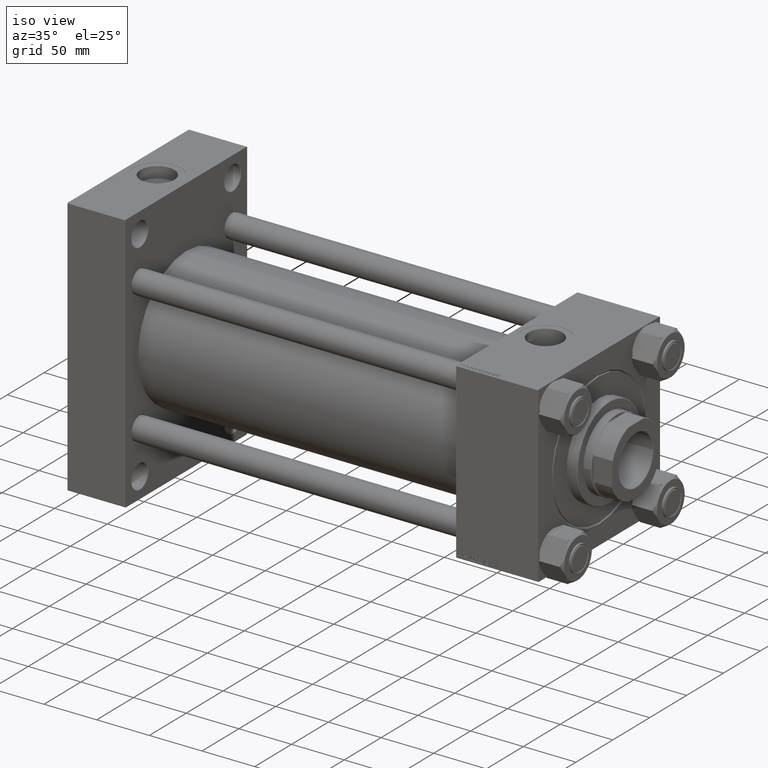
[diagram: clean part render]
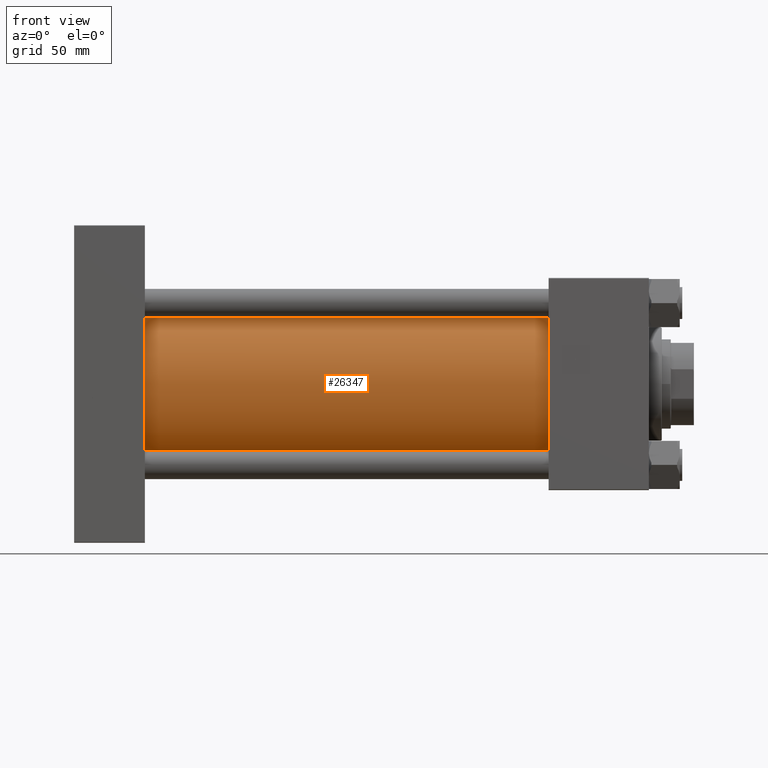
[diagram: tour spotlight — one face highlighted and labeled with its STEP entity id]
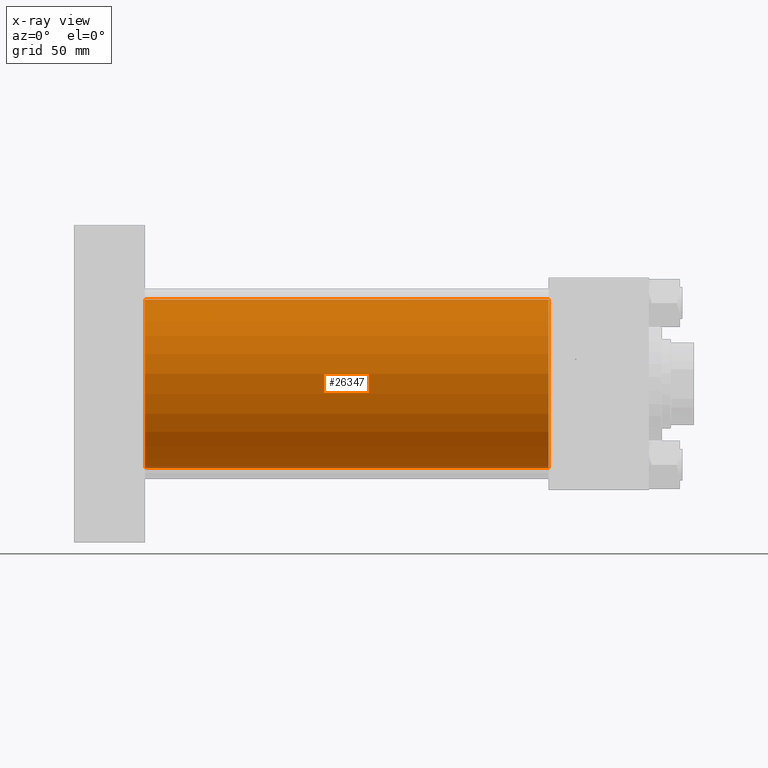
[diagram: x-ray of the same camera — body ghosted, this tour face saturated]
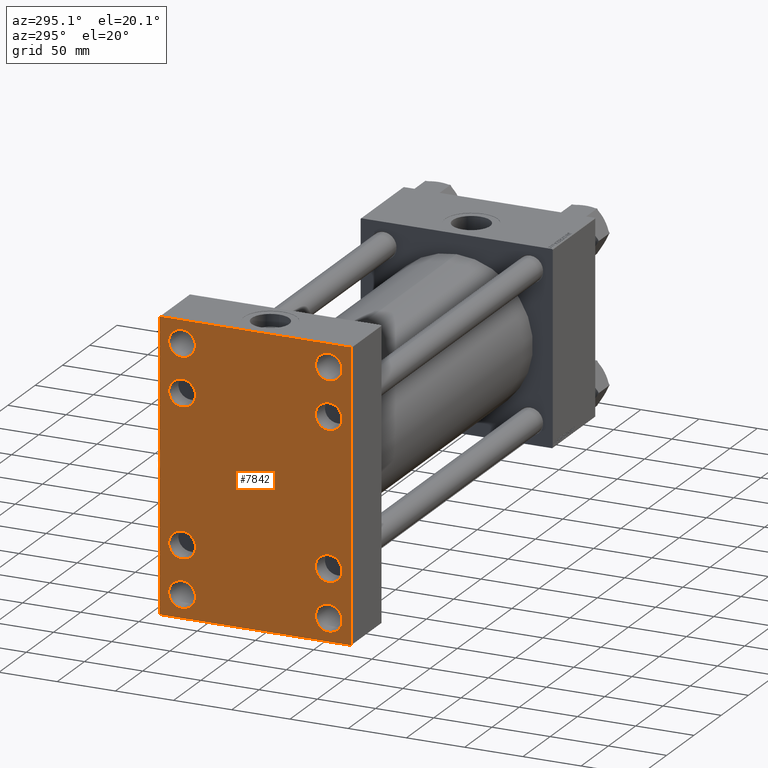
[diagram: tour spotlight — one face highlighted and labeled with its STEP entity id]
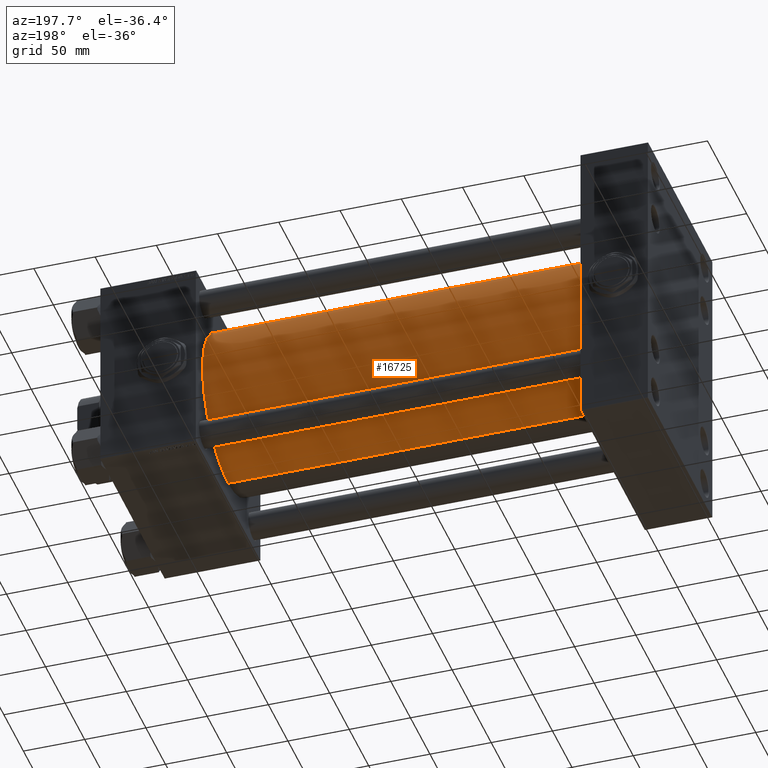
[diagram: tour spotlight — one face highlighted and labeled with its STEP entity id]
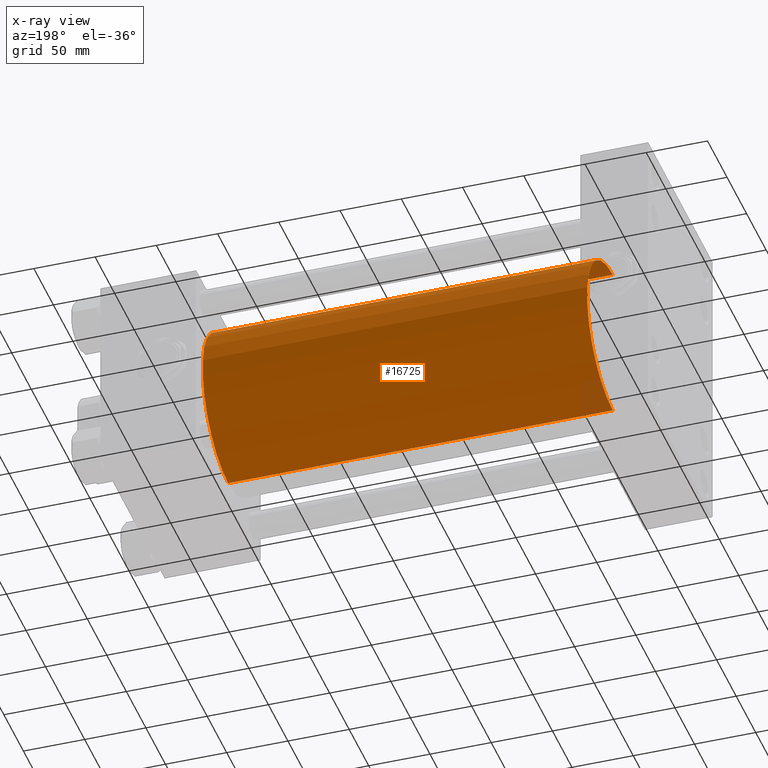
[diagram: x-ray of the same camera — body ghosted, this tour face saturated]
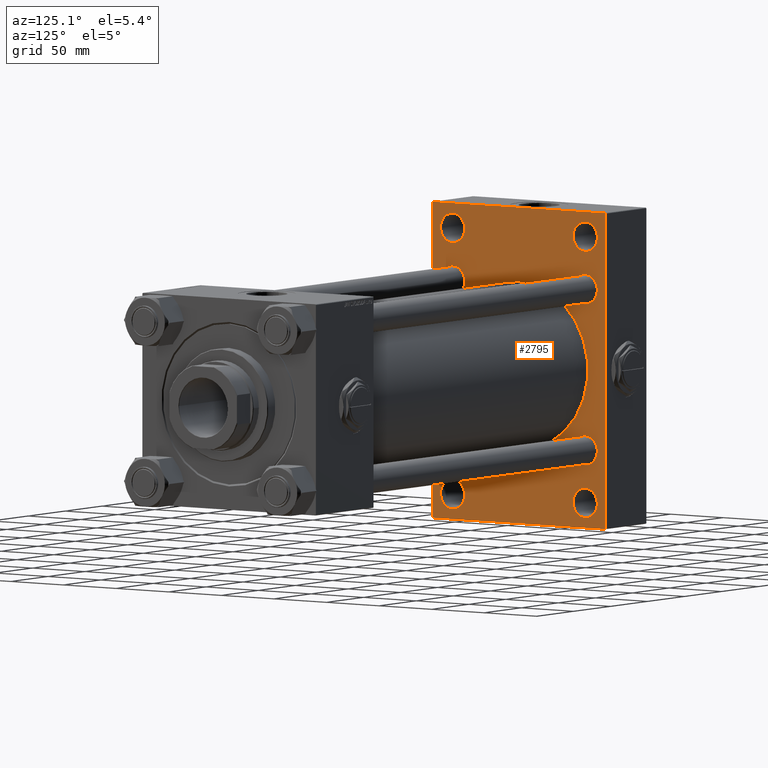
[diagram: tour spotlight — one face highlighted and labeled with its STEP entity id]
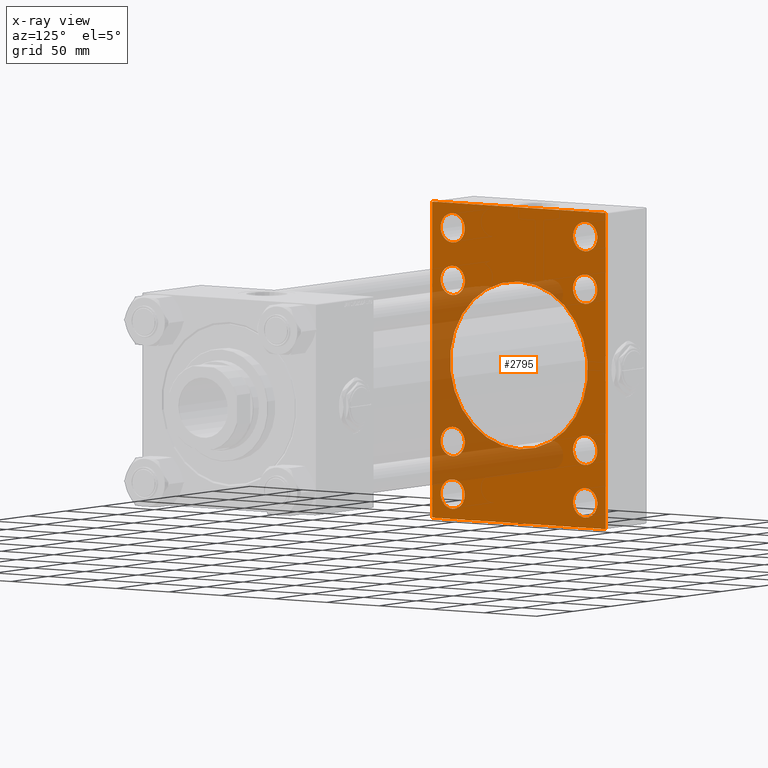
[diagram: x-ray of the same camera — body ghosted, this tour face saturated]
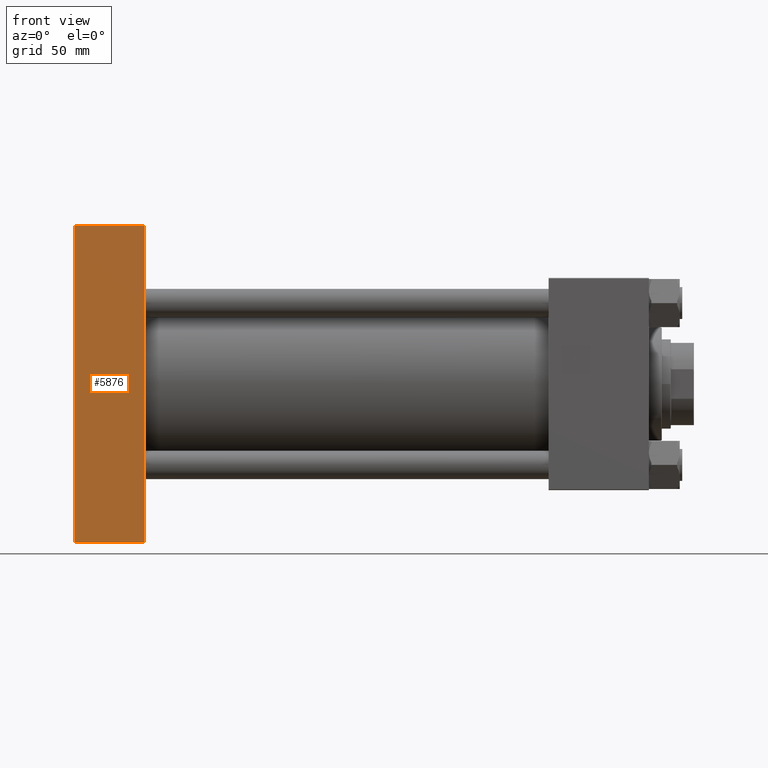
[diagram: tour spotlight — one face highlighted and labeled with its STEP entity id]
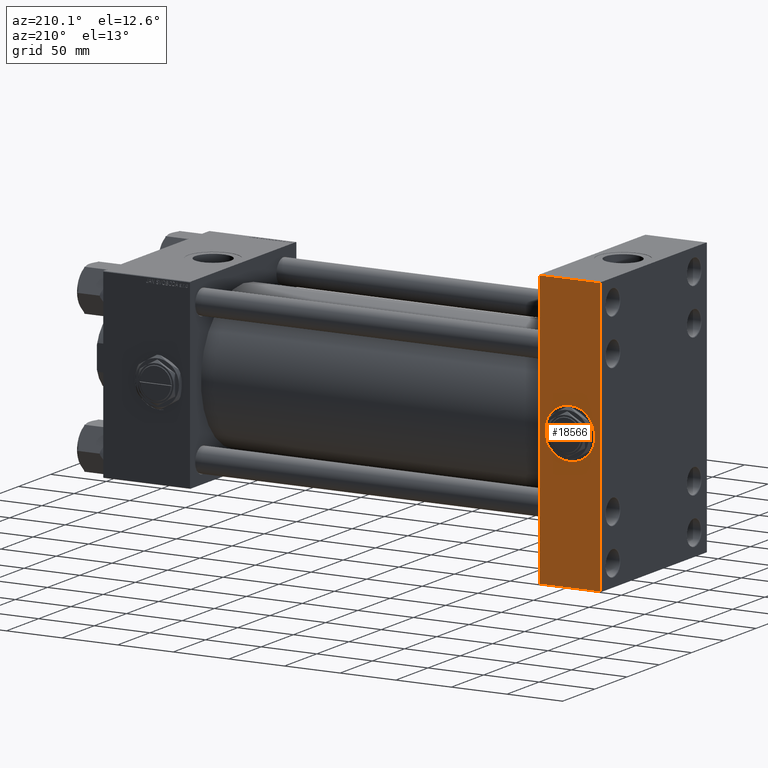
[diagram: tour spotlight — one face highlighted and labeled with its STEP entity id]
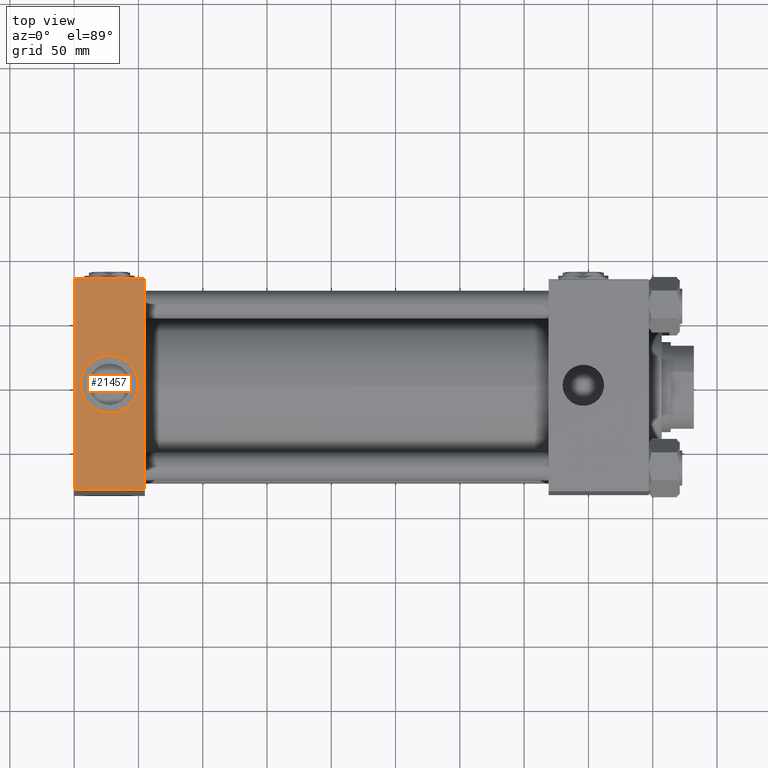
[diagram: tour spotlight — one face highlighted and labeled with its STEP entity id]
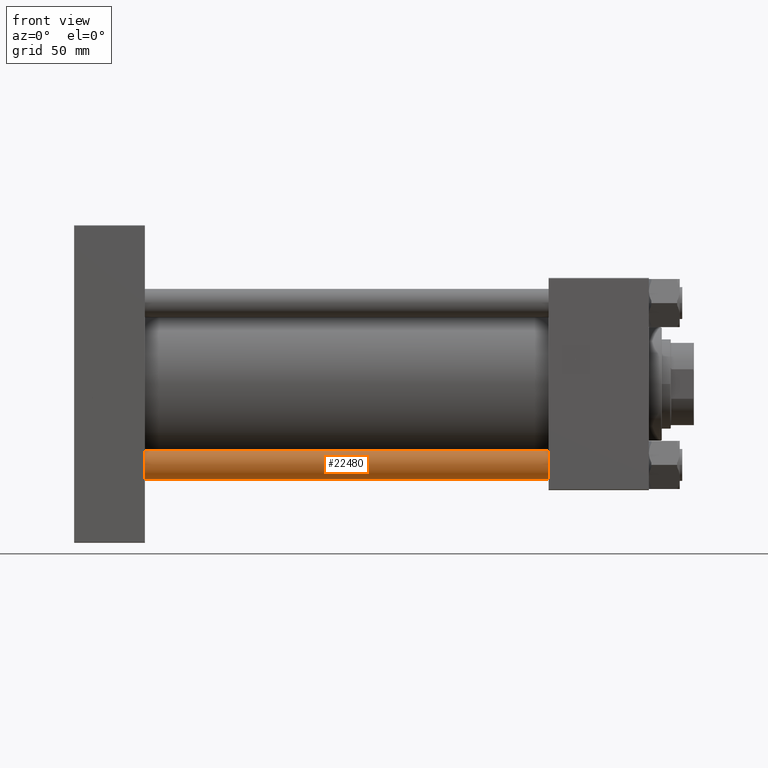
[diagram: tour spotlight — one face highlighted and labeled with its STEP entity id]
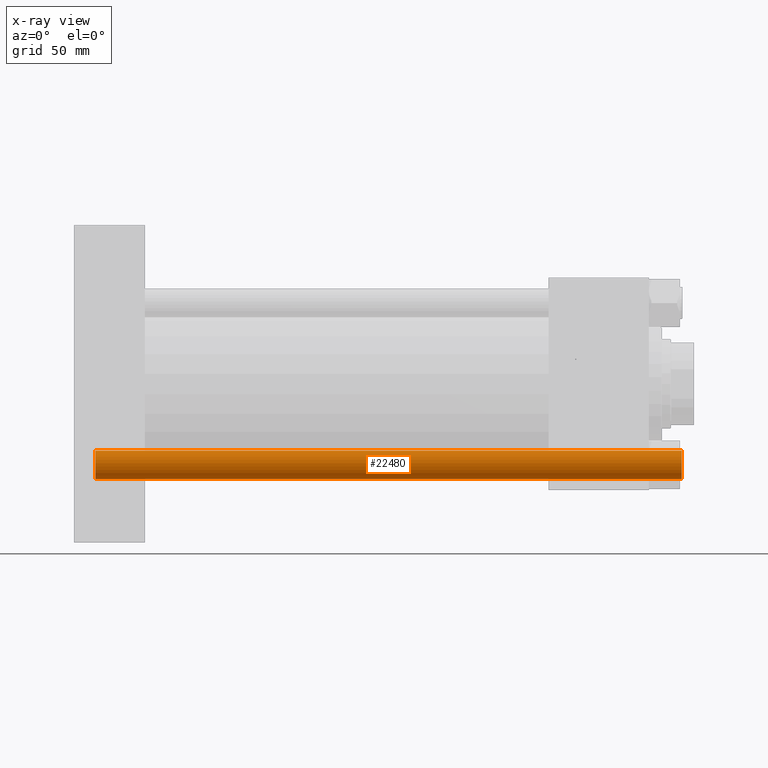
[diagram: x-ray of the same camera — body ghosted, this tour face saturated]
A machine part: a face-by-face anatomy tour. The part has 1284 B-rep faces; the first image is the clean iso view, then the 8 largest visible faces are spotlighted one at a time (largest first), each with its STEP entity span.

Face 1 — front view, entity #26347. An x-ray twin of the same camera follows (body ghosted, this face saturated) — the face is partly hidden behind the body. In plain terms, the highlighted cylindrical surface (partial cylindrical patch) has radius 65.5 mm, axis along (-1, -0, -0).
Definition (entity closure, byte-faithful):
#279 = CARTESIAN_POINT ( 'NONE',  ( 54.99999999999999289, -2.602085213965210642E-15, 0.000000000000000000 ) ) ;
#2318 = VERTEX_POINT ( 'NONE', #31474 ) ;
#4063 = DIRECTION ( 'NONE',  ( -1.000000000000000000, -0.000000000000000000, -0.000000000000000000 ) ) ;
#4356 = VECTOR ( 'NONE', #4063, 1000.000000000000000 ) ;
#5261 = EDGE_CURVE ( 'NONE', #2318, #30224, #35724, .T. ) ;
#6765 = AXIS2_PLACEMENT_3D ( 'NONE', #25773, #16486, #30025 ) ;
#7091 = CARTESIAN_POINT ( 'NONE',  ( 54.99999999999999289, 5.419351320449954973E-15, -65.50000000000001421 ) ) ;
#7639 = EDGE_LOOP ( 'NONE', ( #14461, #21656, #33471, #11747 ) ) ;
#7931 = VECTOR ( 'NONE', #37715, 1000.000000000000000 ) ;
#8090 = CARTESIAN_POINT ( 'NONE',  ( 369.0000000000000000, 5.419351320449954973E-15, -65.50000000000001421 ) ) ;
#9545 = CYLINDRICAL_SURFACE ( 'NONE', #6765, 65.50000000000001421 ) ;
#10810 = VERTEX_POINT ( 'NONE', #49572 ) ;
#11747 = ORIENTED_EDGE ( 'NONE', *, *, #20457, .T. ) ;
#14461 = ORIENTED_EDGE ( 'NONE', *, *, #46289, .F. ) ;
#16310 = DIRECTION ( 'NONE',  ( 1.000000000000000000, 0.000000000000000000, 0.000000000000000000 ) ) ;
#16486 = DIRECTION ( 'NONE',  ( -1.000000000000000000, -0.000000000000000000, -0.000000000000000000 ) ) ;
#16531 = DIRECTION ( 'NONE',  ( 1.000000000000000000, -0.000000000000000000, 0.000000000000000000 ) ) ;
#20447 = CARTESIAN_POINT ( 'NONE',  ( 369.0000000000000000, -2.602085213965210642E-15, 65.50000000000001421 ) ) ;
#20457 = EDGE_CURVE ( 'NONE', #10810, #23900, #21819, .T. ) ;
#21656 = ORIENTED_EDGE ( 'NONE', *, *, #5261, .F. ) ;
#21819 = CIRCLE ( 'NONE', #32847, 65.50000000000001421 ) ;
#23900 = VERTEX_POINT ( 'NONE', #7091 ) ;
#24693 = LINE ( 'NONE', #20447, #7931 ) ;
#25773 = CARTESIAN_POINT ( 'NONE',  ( 369.0000000000000000, -2.602085213965210642E-15, 0.000000000000000000 ) ) ;
#26347 = ADVANCED_FACE ( 'NONE', ( #45976 ), #9545, .T. ) ;
#26371 = AXIS2_PLACEMENT_3D ( 'NONE', #49025, #16310, #27518 ) ;
#27518 = DIRECTION ( 'NONE',  ( 0.000000000000000000, 0.000000000000000000, -1.000000000000000000 ) ) ;
#30025 = DIRECTION ( 'NONE',  ( 0.000000000000000000, 0.000000000000000000, 1.000000000000000000 ) ) ;
#30224 = VERTEX_POINT ( 'NONE', #44741 ) ;
#31474 = CARTESIAN_POINT ( 'NONE',  ( 369.0000000000000000, -2.602085213965210642E-15, 65.50000000000001421 ) ) ;
#32847 = AXIS2_PLACEMENT_3D ( 'NONE', #279, #16531, #40211 ) ;
#33471 = ORIENTED_EDGE ( 'NONE', *, *, #43271, .T. ) ;
#35724 = CIRCLE ( 'NONE', #26371, 65.50000000000001421 ) ;
#37715 = DIRECTION ( 'NONE',  ( -1.000000000000000000, -0.000000000000000000, -0.000000000000000000 ) ) ;
#40211 = DIRECTION ( 'NONE',  ( 0.000000000000000000, 0.000000000000000000, 1.000000000000000000 ) ) ;
#43271 = EDGE_CURVE ( 'NONE', #2318, #10810, #24693, .T. ) ;
#44741 = CARTESIAN_POINT ( 'NONE',  ( 369.0000000000000000, 5.419351320449954973E-15, -65.50000000000001421 ) ) ;
#45976 = FACE_OUTER_BOUND ( 'NONE', #7639, .T. ) ;
#46289 = EDGE_CURVE ( 'NONE', #30224, #23900, #52517, .T. ) ;
#49025 = CARTESIAN_POINT ( 'NONE',  ( 369.0000000000000000, -2.602085213965210642E-15, 0.000000000000000000 ) ) ;
#49572 = CARTESIAN_POINT ( 'NONE',  ( 54.99999999999999289, -2.602085213965210642E-15, 65.50000000000001421 ) ) ;
#52517 = LINE ( 'NONE', #8090, #4356 ) ;

Face 2 — auxiliary view, entity #7842. In plain terms, the highlighted planar face has unit normal (-1, 0, 0).
Definition (entity closure, byte-faithful):
#332 = CARTESIAN_POINT ( 'NONE',  ( 0.000000000000000000, -81.99999999999998579, 123.5000000000000000 ) ) ;
#857 = CARTESIAN_POINT ( 'NONE',  ( 0.000000000000000000, -62.94999999999998153, 51.44999999999998153 ) ) ;
#966 = CIRCLE ( 'NONE', #34995, 11.50000000000006573 ) ;
#1205 = CIRCLE ( 'NONE', #48821, 11.50000000000006573 ) ;
#1255 = VERTEX_POINT ( 'NONE', #31404 ) ;
#1348 = CARTESIAN_POINT ( 'NONE',  ( 0.000000000000000000, 62.95000000000000284, -62.95000000000000284 ) ) ;
#2048 = FACE_BOUND ( 'NONE', #42697, .T. ) ;
#2055 = CARTESIAN_POINT ( 'NONE',  ( 0.000000000000000000, 62.99999999999998579, -92.49999999999991473 ) ) ;
#2101 = ORIENTED_EDGE ( 'NONE', *, *, #7507, .T. ) ;
#2299 = FACE_BOUND ( 'NONE', #25479, .T. ) ;
#2364 = CARTESIAN_POINT ( 'NONE',  ( 0.000000000000000000, 62.95000000000000284, 62.95000000000000284 ) ) ;
#2796 = VERTEX_POINT ( 'NONE', #6329 ) ;
#3169 = ORIENTED_EDGE ( 'NONE', *, *, #34842, .T. ) ;
#3632 = AXIS2_PLACEMENT_3D ( 'NONE', #36201, #7469, #52433 ) ;
#3850 = CARTESIAN_POINT ( 'NONE',  ( 0.000000000000000000, 82.50000000000001421, 123.5000000000000284 ) ) ;
#4413 = AXIS2_PLACEMENT_3D ( 'NONE', #1348, #50325, #50053 ) ;
#4525 = ORIENTED_EDGE ( 'NONE', *, *, #13354, .T. ) ;
#4543 = CARTESIAN_POINT ( 'NONE',  ( 0.000000000000000000, 62.99999999999998579, 92.49999999999994316 ) ) ;
#4725 = ORIENTED_EDGE ( 'NONE', *, *, #36621, .T. ) ;
#4788 = DIRECTION ( 'NONE',  ( 0.000000000000000000, 0.000000000000000000, 1.000000000000000000 ) ) ;
#5141 = ORIENTED_EDGE ( 'NONE', *, *, #21070, .T. ) ;
#5572 = ORIENTED_EDGE ( 'NONE', *, *, #37015, .F. ) ;
#6034 = FACE_BOUND ( 'NONE', #48285, .T. ) ;
#6233 = DIRECTION ( 'NONE',  ( 0.000000000000000000, 0.000000000000000000, 1.000000000000000000 ) ) ;
#6329 = CARTESIAN_POINT ( 'NONE',  ( 0.000000000000000000, -63.00000000000002842, -115.5000000000000426 ) ) ;
#6574 = FACE_OUTER_BOUND ( 'NONE', #13338, .T. ) ;
#6761 = DIRECTION ( 'NONE',  ( 0.000000000000000000, -0.7071067811865474617, 0.7071067811865474617 ) ) ;
#6886 = LINE ( 'NONE', #7941, #24926 ) ;
#7043 = CIRCLE ( 'NONE', #44436, 11.50000000000003730 ) ;
#7288 = DIRECTION ( 'NONE',  ( 0.000000000000000000, 0.000000000000000000, 1.000000000000000000 ) ) ;
#7344 = CARTESIAN_POINT ( 'NONE',  ( 0.000000000000000000, -82.49999999999998579, 122.9999999999999716 ) ) ;
#7368 = DIRECTION ( 'NONE',  ( 0.000000000000000000, 0.000000000000000000, 1.000000000000000000 ) ) ;
#7384 = EDGE_LOOP ( 'NONE', ( #45179, #20879 ) ) ;
#7469 = DIRECTION ( 'NONE',  ( 1.000000000000000000, -0.000000000000000000, 0.000000000000000000 ) ) ;
#7507 = EDGE_CURVE ( 'NONE', #18104, #19754, #40868, .T. ) ;
#7589 = DIRECTION ( 'NONE',  ( 0.000000000000000000, 0.000000000000000000, 1.000000000000000000 ) ) ;
#7696 = ORIENTED_EDGE ( 'NONE', *, *, #38919, .T. ) ;
#7842 = ADVANCED_FACE ( 'NONE', ( #2299, #6034, #18829, #22023, #14852, #47285, #2048, #10849, #6574 ), #42759, .T. ) ;
#7941 = CARTESIAN_POINT ( 'NONE',  ( 0.000000000000000000, -82.49999999999998579, 123.5000000000000000 ) ) ;
#8162 = DIRECTION ( 'NONE',  ( 1.000000000000000000, -0.000000000000000000, 0.000000000000000000 ) ) ;
#8374 = EDGE_CURVE ( 'NONE', #15131, #49925, #966, .T. ) ;
#9144 = ORIENTED_EDGE ( 'NONE', *, *, #40315, .T. ) ;
#10057 = CARTESIAN_POINT ( 'NONE',  ( 0.000000000000000000, -62.94999999999998153, -74.45000000000005969 ) ) ;
#10224 = CIRCLE ( 'NONE', #23824, 11.50000000000003730 ) ;
#10849 = FACE_BOUND ( 'NONE', #7384, .T. ) ;
#11263 = EDGE_CURVE ( 'NONE', #12739, #32923, #39328, .T. ) ;
#11278 = AXIS2_PLACEMENT_3D ( 'NONE', #48557, #31546, #7589 ) ;
#11382 = DIRECTION ( 'NONE',  ( 1.000000000000000000, -0.000000000000000000, 0.000000000000000000 ) ) ;
#11447 = CARTESIAN_POINT ( 'NONE',  ( 0.000000000000000000, 62.95000000000000284, 74.44999999999998863 ) ) ;
#11453 = CARTESIAN_POINT ( 'NONE',  ( 0.000000000000000000, -62.94999999999998153, -62.95000000000001705 ) ) ;
#11970 = EDGE_CURVE ( 'NONE', #2796, #46466, #35120, .T. ) ;
#12122 = CIRCLE ( 'NONE', #44505, 11.50000000000006573 ) ;
#12327 = EDGE_CURVE ( 'NONE', #21783, #34723, #7043, .T. ) ;
#12463 = CARTESIAN_POINT ( 'NONE',  ( 0.000000000000000000, 102.7500000000000142, -102.7500000000000142 ) ) ;
#12739 = VERTEX_POINT ( 'NONE', #32983 ) ;
#12795 = EDGE_CURVE ( 'NONE', #24057, #18787, #18350, .T. ) ;
#12900 = EDGE_CURVE ( 'NONE', #44985, #43636, #6886, .T. ) ;
#13213 = ORIENTED_EDGE ( 'NONE', *, *, #12327, .T. ) ;
#13276 = DIRECTION ( 'NONE',  ( 0.000000000000000000, 0.000000000000000000, 1.000000000000000000 ) ) ;
#13338 = EDGE_LOOP ( 'NONE', ( #50579, #39625, #18532, #4525, #15717, #39313, #5572, #5141 ) ) ;
#13354 = EDGE_CURVE ( 'NONE', #18787, #43636, #26735, .T. ) ;
#13604 = CIRCLE ( 'NONE', #38247, 11.49999999999998224 ) ;
#14108 = ORIENTED_EDGE ( 'NONE', *, *, #15342, .T. ) ;
#14207 = ORIENTED_EDGE ( 'NONE', *, *, #8374, .T. ) ;
#14852 = FACE_BOUND ( 'NONE', #36133, .T. ) ;
#15131 = VERTEX_POINT ( 'NONE', #4543 ) ;
#15342 = EDGE_CURVE ( 'NONE', #46466, #2796, #1205, .T. ) ;
#15621 = CARTESIAN_POINT ( 'NONE',  ( 0.000000000000000000, 62.99999999999998579, -103.9999999999999858 ) ) ;
#15717 = ORIENTED_EDGE ( 'NONE', *, *, #12900, .F. ) ;
#16308 = CIRCLE ( 'NONE', #39252, 11.50000000000006573 ) ;
#17057 = EDGE_LOOP ( 'NONE', ( #9144, #49773 ) ) ;
#17174 = LINE ( 'NONE', #41125, #47297 ) ;
#17816 = CARTESIAN_POINT ( 'NONE',  ( 0.000000000000000000, 82.50000000000001421, -123.4999999999999716 ) ) ;
#17940 = AXIS2_PLACEMENT_3D ( 'NONE', #26018, #51287, #18305 ) ;
#18002 = ORIENTED_EDGE ( 'NONE', *, *, #36692, .T. ) ;
#18104 = VERTEX_POINT ( 'NONE', #28409 ) ;
#18305 = DIRECTION ( 'NONE',  ( -0.000000000000000000, 0.000000000000000000, 1.000000000000000000 ) ) ;
#18328 = DIRECTION ( 'NONE',  ( 0.000000000000000000, -1.000000000000000000, -1.682156097916903834E-16 ) ) ;
#18350 = LINE ( 'NONE', #17816, #40233 ) ;
#18532 = ORIENTED_EDGE ( 'NONE', *, *, #12795, .T. ) ;
#18787 = VERTEX_POINT ( 'NONE', #35086 ) ;
#18829 = FACE_BOUND ( 'NONE', #31185, .T. ) ;
#19235 = CARTESIAN_POINT ( 'NONE',  ( 0.000000000000000000, 62.99999999999998579, 115.5000000000000711 ) ) ;
#19270 = DIRECTION ( 'NONE',  ( 1.000000000000000000, -0.000000000000000000, 0.000000000000000000 ) ) ;
#19403 = DIRECTION ( 'NONE',  ( 0.000000000000000000, 0.000000000000000000, -1.000000000000000000 ) ) ;
#19754 = VERTEX_POINT ( 'NONE', #29529 ) ;
#19764 = DIRECTION ( 'NONE',  ( 0.000000000000000000, 0.000000000000000000, 1.000000000000000000 ) ) ;
#19795 = CARTESIAN_POINT ( 'NONE',  ( 0.000000000000000000, -62.94999999999998153, -62.95000000000001705 ) ) ;
#20200 = CARTESIAN_POINT ( 'NONE',  ( 0.000000000000000000, -63.00000000000002842, -92.49999999999991473 ) ) ;
#20288 = CIRCLE ( 'NONE', #44075, 11.49999999999998224 ) ;
#20485 = AXIS2_PLACEMENT_3D ( 'NONE', #22092, #46299, #4788 ) ;
#20595 = CIRCLE ( 'NONE', #4413, 11.50000000000003730 ) ;
#20747 = VERTEX_POINT ( 'NONE', #45688 ) ;
#20879 = ORIENTED_EDGE ( 'NONE', *, *, #31976, .T. ) ;
#20958 = LINE ( 'NONE', #12463, #21224 ) ;
#21070 = EDGE_CURVE ( 'NONE', #35772, #20747, #17174, .T. ) ;
#21083 = ORIENTED_EDGE ( 'NONE', *, *, #11970, .T. ) ;
#21224 = VECTOR ( 'NONE', #36152, 1000.000000000000114 ) ;
#21314 = VERTEX_POINT ( 'NONE', #857 ) ;
#21783 = VERTEX_POINT ( 'NONE', #10057 ) ;
#22023 = FACE_BOUND ( 'NONE', #17057, .T. ) ;
#22092 = CARTESIAN_POINT ( 'NONE',  ( 0.000000000000000000, -63.00000000000002842, 104.0000000000000142 ) ) ;
#22723 = DIRECTION ( 'NONE',  ( 1.000000000000000000, -0.000000000000000000, 0.000000000000000000 ) ) ;
#22851 = VERTEX_POINT ( 'NONE', #47850 ) ;
#23113 = LINE ( 'NONE', #3850, #28264 ) ;
#23294 = DIRECTION ( 'NONE',  ( 1.000000000000000000, -0.000000000000000000, 0.000000000000000000 ) ) ;
#23350 = DIRECTION ( 'NONE',  ( 0.000000000000000000, 0.000000000000000000, 1.000000000000000000 ) ) ;
#23824 = AXIS2_PLACEMENT_3D ( 'NONE', #46950, #23294, #6233 ) ;
#24057 = VERTEX_POINT ( 'NONE', #24058 ) ;
#24058 = CARTESIAN_POINT ( 'NONE',  ( 0.000000000000000000, 82.00000000000004263, -123.4999999999999716 ) ) ;
#24926 = VECTOR ( 'NONE', #19403, 1000.000000000000000 ) ;
#25413 = CARTESIAN_POINT ( 'NONE',  ( 0.000000000000000000, -82.49999999999998579, -122.9999999999999432 ) ) ;
#25479 = EDGE_LOOP ( 'NONE', ( #28845, #14207 ) ) ;
#26018 = CARTESIAN_POINT ( 'NONE',  ( 0.000000000000000000, 0.000000000000000000, 0.000000000000000000 ) ) ;
#26165 = EDGE_CURVE ( 'NONE', #44985, #41777, #50577, .T. ) ;
#26594 = CIRCLE ( 'NONE', #3632, 11.50000000000003730 ) ;
#26735 = LINE ( 'NONE', #42948, #27493 ) ;
#27416 = DIRECTION ( 'NONE',  ( 0.000000000000000000, 0.000000000000000000, 1.000000000000000000 ) ) ;
#27493 = VECTOR ( 'NONE', #6761, 1000.000000000000114 ) ;
#27676 = DIRECTION ( 'NONE',  ( 1.000000000000000000, -0.000000000000000000, 0.000000000000000000 ) ) ;
#27681 = DIRECTION ( 'NONE',  ( 1.000000000000000000, -0.000000000000000000, 0.000000000000000000 ) ) ;
#27992 = CARTESIAN_POINT ( 'NONE',  ( 0.000000000000000000, 82.50000000000001421, 123.5000000000000284 ) ) ;
#28190 = AXIS2_PLACEMENT_3D ( 'NONE', #11453, #27676, #47617 ) ;
#28264 = VECTOR ( 'NONE', #18328, 1000.000000000000000 ) ;
#28409 = CARTESIAN_POINT ( 'NONE',  ( 0.000000000000000000, -63.00000000000002842, 92.49999999999994316 ) ) ;
#28737 = DIRECTION ( 'NONE',  ( 0.000000000000000000, 0.000000000000000000, 1.000000000000000000 ) ) ;
#28812 = VERTEX_POINT ( 'NONE', #31795 ) ;
#28845 = ORIENTED_EDGE ( 'NONE', *, *, #50399, .T. ) ;
#28909 = EDGE_LOOP ( 'NONE', ( #3169, #13213 ) ) ;
#29225 = EDGE_CURVE ( 'NONE', #40607, #1255, #20288, .T. ) ;
#29529 = CARTESIAN_POINT ( 'NONE',  ( 0.000000000000000000, -63.00000000000002842, 115.5000000000000711 ) ) ;
#29662 = VECTOR ( 'NONE', #30607, 1000.000000000000000 ) ;
#30607 = DIRECTION ( 'NONE',  ( -0.000000000000000000, 0.7071067811865279218, 0.7071067811865672237 ) ) ;
#30753 = EDGE_CURVE ( 'NONE', #34477, #24057, #20958, .T. ) ;
#31185 = EDGE_LOOP ( 'NONE', ( #14108, #21083 ) ) ;
#31404 = CARTESIAN_POINT ( 'NONE',  ( 0.000000000000000000, 62.95000000000000284, 51.45000000000002416 ) ) ;
#31546 = DIRECTION ( 'NONE',  ( 1.000000000000000000, -0.000000000000000000, 0.000000000000000000 ) ) ;
#31795 = CARTESIAN_POINT ( 'NONE',  ( 0.000000000000000000, 62.95000000000000284, -74.45000000000004547 ) ) ;
#31976 = EDGE_CURVE ( 'NONE', #1255, #40607, #13604, .T. ) ;
#32175 = EDGE_CURVE ( 'NONE', #34583, #21314, #10224, .T. ) ;
#32582 = EDGE_CURVE ( 'NONE', #20747, #34477, #32757, .T. ) ;
#32754 = CARTESIAN_POINT ( 'NONE',  ( 0.000000000000000000, -62.94999999999998153, 74.45000000000005969 ) ) ;
#32757 = LINE ( 'NONE', #27992, #44195 ) ;
#32923 = VERTEX_POINT ( 'NONE', #2055 ) ;
#32983 = CARTESIAN_POINT ( 'NONE',  ( 0.000000000000000000, 62.99999999999998579, -115.5000000000000426 ) ) ;
#33485 = CARTESIAN_POINT ( 'NONE',  ( 0.000000000000000000, 62.95000000000000284, 62.95000000000000284 ) ) ;
#33567 = DIRECTION ( 'NONE',  ( 1.000000000000000000, -0.000000000000000000, 0.000000000000000000 ) ) ;
#34107 = CIRCLE ( 'NONE', #28190, 11.50000000000003730 ) ;
#34364 = DIRECTION ( 'NONE',  ( 0.000000000000000000, 0.000000000000000000, 1.000000000000000000 ) ) ;
#34477 = VERTEX_POINT ( 'NONE', #40218 ) ;
#34569 = DIRECTION ( 'NONE',  ( 0.000000000000000000, -1.000000000000000000, -1.682156097916903834E-16 ) ) ;
#34583 = VERTEX_POINT ( 'NONE', #32754 ) ;
#34723 = VERTEX_POINT ( 'NONE', #47097 ) ;
#34842 = EDGE_CURVE ( 'NONE', #34723, #21783, #34107, .T. ) ;
#34929 = CARTESIAN_POINT ( 'NONE',  ( 0.000000000000000000, -62.94999999999998153, 62.95000000000001705 ) ) ;
#34995 = AXIS2_PLACEMENT_3D ( 'NONE', #36010, #22723, #47193 ) ;
#35086 = CARTESIAN_POINT ( 'NONE',  ( 0.000000000000000000, -81.99999999999992895, -123.5000000000000000 ) ) ;
#35120 = CIRCLE ( 'NONE', #47836, 11.50000000000006573 ) ;
#35577 = CARTESIAN_POINT ( 'NONE',  ( 0.000000000000000000, -63.00000000000002842, -103.9999999999999858 ) ) ;
#35772 = VERTEX_POINT ( 'NONE', #46770 ) ;
#36010 = CARTESIAN_POINT ( 'NONE',  ( 0.000000000000000000, 62.99999999999998579, 104.0000000000000142 ) ) ;
#36133 = EDGE_LOOP ( 'NONE', ( #49077, #42828 ) ) ;
#36152 = DIRECTION ( 'NONE',  ( -0.000000000000000000, -0.7071067811865474617, -0.7071067811865474617 ) ) ;
#36201 = CARTESIAN_POINT ( 'NONE',  ( 0.000000000000000000, 62.95000000000000284, -62.95000000000000284 ) ) ;
#36621 = EDGE_CURVE ( 'NONE', #28812, #22851, #20595, .T. ) ;
#36692 = EDGE_CURVE ( 'NONE', #19754, #18104, #52009, .T. ) ;
#37015 = EDGE_CURVE ( 'NONE', #35772, #41777, #23113, .T. ) ;
#37533 = AXIS2_PLACEMENT_3D ( 'NONE', #34929, #39190, #19764 ) ;
#38177 = DIRECTION ( 'NONE',  ( 0.000000000000000000, 0.7071067811865672237, -0.7071067811865279218 ) ) ;
#38247 = AXIS2_PLACEMENT_3D ( 'NONE', #2364, #11382, #7368 ) ;
#38919 = EDGE_CURVE ( 'NONE', #22851, #28812, #26594, .T. ) ;
#39190 = DIRECTION ( 'NONE',  ( 1.000000000000000000, -0.000000000000000000, 0.000000000000000000 ) ) ;
#39252 = AXIS2_PLACEMENT_3D ( 'NONE', #40668, #27681, #27416 ) ;
#39313 = ORIENTED_EDGE ( 'NONE', *, *, #26165, .T. ) ;
#39328 = CIRCLE ( 'NONE', #11278, 11.50000000000006573 ) ;
#39625 = ORIENTED_EDGE ( 'NONE', *, *, #30753, .T. ) ;
#40218 = CARTESIAN_POINT ( 'NONE',  ( 0.000000000000000000, 82.50000000000001421, -123.0000000000000000 ) ) ;
#40233 = VECTOR ( 'NONE', #34569, 1000.000000000000000 ) ;
#40315 = EDGE_CURVE ( 'NONE', #32923, #12739, #12122, .T. ) ;
#40440 = CARTESIAN_POINT ( 'NONE',  ( 0.000000000000000000, -63.00000000000002842, -103.9999999999999858 ) ) ;
#40607 = VERTEX_POINT ( 'NONE', #11447 ) ;
#40668 = CARTESIAN_POINT ( 'NONE',  ( 0.000000000000000000, 62.99999999999998579, 104.0000000000000142 ) ) ;
#40868 = CIRCLE ( 'NONE', #20485, 11.50000000000006573 ) ;
#40971 = AXIS2_PLACEMENT_3D ( 'NONE', #42314, #33567, #34364 ) ;
#41125 = CARTESIAN_POINT ( 'NONE',  ( 0.000000000000000000, 102.7499999999977121, 102.7500000000034390 ) ) ;
#41777 = VERTEX_POINT ( 'NONE', #332 ) ;
#42314 = CARTESIAN_POINT ( 'NONE',  ( 0.000000000000000000, -63.00000000000002842, 104.0000000000000142 ) ) ;
#42697 = EDGE_LOOP ( 'NONE', ( #7696, #4725 ) ) ;
#42759 = PLANE ( 'NONE',  #17940 ) ;
#42828 = ORIENTED_EDGE ( 'NONE', *, *, #50892, .T. ) ;
#42948 = CARTESIAN_POINT ( 'NONE',  ( 0.000000000000000000, -102.7499999999999716, -102.7499999999999716 ) ) ;
#43532 = DIRECTION ( 'NONE',  ( 1.000000000000000000, -0.000000000000000000, 0.000000000000000000 ) ) ;
#43636 = VERTEX_POINT ( 'NONE', #25413 ) ;
#44075 = AXIS2_PLACEMENT_3D ( 'NONE', #33485, #49716, #13276 ) ;
#44193 = DIRECTION ( 'NONE',  ( 0.000000000000000000, 0.000000000000000000, -1.000000000000000000 ) ) ;
#44195 = VECTOR ( 'NONE', #44193, 1000.000000000000000 ) ;
#44436 = AXIS2_PLACEMENT_3D ( 'NONE', #19795, #19270, #7288 ) ;
#44505 = AXIS2_PLACEMENT_3D ( 'NONE', #15621, #43532, #23350 ) ;
#44985 = VERTEX_POINT ( 'NONE', #7344 ) ;
#45179 = ORIENTED_EDGE ( 'NONE', *, *, #29225, .T. ) ;
#45688 = CARTESIAN_POINT ( 'NONE',  ( 0.000000000000000000, 82.50000000000001421, 123.0000000000000284 ) ) ;
#46299 = DIRECTION ( 'NONE',  ( 1.000000000000000000, -0.000000000000000000, 0.000000000000000000 ) ) ;
#46466 = VERTEX_POINT ( 'NONE', #20200 ) ;
#46770 = CARTESIAN_POINT ( 'NONE',  ( 0.000000000000000000, 81.99999999999998579, 123.5000000000000284 ) ) ;
#46950 = CARTESIAN_POINT ( 'NONE',  ( 0.000000000000000000, -62.94999999999998153, 62.95000000000001705 ) ) ;
#46987 = CIRCLE ( 'NONE', #37533, 11.50000000000003730 ) ;
#47097 = CARTESIAN_POINT ( 'NONE',  ( 0.000000000000000000, -62.94999999999998153, -51.44999999999998153 ) ) ;
#47193 = DIRECTION ( 'NONE',  ( 0.000000000000000000, 0.000000000000000000, 1.000000000000000000 ) ) ;
#47285 = FACE_BOUND ( 'NONE', #28909, .T. ) ;
#47297 = VECTOR ( 'NONE', #38177, 1000.000000000000000 ) ;
#47617 = DIRECTION ( 'NONE',  ( 0.000000000000000000, 0.000000000000000000, 1.000000000000000000 ) ) ;
#47836 = AXIS2_PLACEMENT_3D ( 'NONE', #40440, #49211, #28737 ) ;
#47850 = CARTESIAN_POINT ( 'NONE',  ( 0.000000000000000000, 62.95000000000000284, -51.44999999999996732 ) ) ;
#48285 = EDGE_LOOP ( 'NONE', ( #18002, #2101 ) ) ;
#48557 = CARTESIAN_POINT ( 'NONE',  ( 0.000000000000000000, 62.99999999999998579, -103.9999999999999858 ) ) ;
#48821 = AXIS2_PLACEMENT_3D ( 'NONE', #35577, #8162, #51814 ) ;
#49077 = ORIENTED_EDGE ( 'NONE', *, *, #32175, .T. ) ;
#49211 = DIRECTION ( 'NONE',  ( 1.000000000000000000, -0.000000000000000000, 0.000000000000000000 ) ) ;
#49716 = DIRECTION ( 'NONE',  ( 1.000000000000000000, -0.000000000000000000, 0.000000000000000000 ) ) ;
#49773 = ORIENTED_EDGE ( 'NONE', *, *, #11263, .T. ) ;
#49925 = VERTEX_POINT ( 'NONE', #19235 ) ;
#50053 = DIRECTION ( 'NONE',  ( 0.000000000000000000, 0.000000000000000000, 1.000000000000000000 ) ) ;
#50325 = DIRECTION ( 'NONE',  ( 1.000000000000000000, -0.000000000000000000, 0.000000000000000000 ) ) ;
#50399 = EDGE_CURVE ( 'NONE', #49925, #15131, #16308, .T. ) ;
#50577 = LINE ( 'NONE', #51371, #29662 ) ;
#50579 = ORIENTED_EDGE ( 'NONE', *, *, #32582, .T. ) ;
#50892 = EDGE_CURVE ( 'NONE', #21314, #34583, #46987, .T. ) ;
#51287 = DIRECTION ( 'NONE',  ( -1.000000000000000000, 0.000000000000000000, -0.000000000000000000 ) ) ;
#51371 = CARTESIAN_POINT ( 'NONE',  ( -0.000000000000000000, -102.7500000000022737, 102.7499999999965610 ) ) ;
#51814 = DIRECTION ( 'NONE',  ( 0.000000000000000000, 0.000000000000000000, 1.000000000000000000 ) ) ;
#52009 = CIRCLE ( 'NONE', #40971, 11.50000000000006573 ) ;
#52433 = DIRECTION ( 'NONE',  ( 0.000000000000000000, 0.000000000000000000, 1.000000000000000000 ) ) ;

Face 3 — auxiliary view, entity #16725. An x-ray twin of the same camera follows (body ghosted, this face saturated) — the face is partly hidden behind the body. In plain terms, the highlighted cylindrical surface (partial cylindrical patch) has radius 65.5 mm, axis along (-1, -0, -0).
Definition (entity closure, byte-faithful):
#1530 = EDGE_LOOP ( 'NONE', ( #16571, #41591, #26022, #4638 ) ) ;
#1592 = CARTESIAN_POINT ( 'NONE',  ( 369.0000000000000000, -2.602085213965210642E-15, 0.000000000000000000 ) ) ;
#2318 = VERTEX_POINT ( 'NONE', #31474 ) ;
#4063 = DIRECTION ( 'NONE',  ( -1.000000000000000000, -0.000000000000000000, -0.000000000000000000 ) ) ;
#4356 = VECTOR ( 'NONE', #4063, 1000.000000000000000 ) ;
#4638 = ORIENTED_EDGE ( 'NONE', *, *, #43271, .F. ) ;
#5592 = DIRECTION ( 'NONE',  ( 0.000000000000000000, 0.000000000000000000, 1.000000000000000000 ) ) ;
#7091 = CARTESIAN_POINT ( 'NONE',  ( 54.99999999999999289, 5.419351320449954973E-15, -65.50000000000001421 ) ) ;
#7931 = VECTOR ( 'NONE', #37715, 1000.000000000000000 ) ;
#8090 = CARTESIAN_POINT ( 'NONE',  ( 369.0000000000000000, 5.419351320449954973E-15, -65.50000000000001421 ) ) ;
#10810 = VERTEX_POINT ( 'NONE', #49572 ) ;
#13094 = DIRECTION ( 'NONE',  ( -1.000000000000000000, -0.000000000000000000, -0.000000000000000000 ) ) ;
#13928 = AXIS2_PLACEMENT_3D ( 'NONE', #1592, #13094, #5592 ) ;
#16033 = AXIS2_PLACEMENT_3D ( 'NONE', #45317, #29875, #36817 ) ;
#16571 = ORIENTED_EDGE ( 'NONE', *, *, #47594, .F. ) ;
#16725 = ADVANCED_FACE ( 'NONE', ( #33285 ), #21845, .T. ) ;
#20447 = CARTESIAN_POINT ( 'NONE',  ( 369.0000000000000000, -2.602085213965210642E-15, 65.50000000000001421 ) ) ;
#21845 = CYLINDRICAL_SURFACE ( 'NONE', #13928, 65.50000000000001421 ) ;
#23900 = VERTEX_POINT ( 'NONE', #7091 ) ;
#24693 = LINE ( 'NONE', #20447, #7931 ) ;
#24821 = CIRCLE ( 'NONE', #26488, 65.50000000000001421 ) ;
#26022 = ORIENTED_EDGE ( 'NONE', *, *, #27609, .T. ) ;
#26488 = AXIS2_PLACEMENT_3D ( 'NONE', #39678, #47142, #35176 ) ;
#27609 = EDGE_CURVE ( 'NONE', #23900, #10810, #42332, .T. ) ;
#29875 = DIRECTION ( 'NONE',  ( 1.000000000000000000, -0.000000000000000000, 0.000000000000000000 ) ) ;
#30224 = VERTEX_POINT ( 'NONE', #44741 ) ;
#31474 = CARTESIAN_POINT ( 'NONE',  ( 369.0000000000000000, -2.602085213965210642E-15, 65.50000000000001421 ) ) ;
#33285 = FACE_OUTER_BOUND ( 'NONE', #1530, .T. ) ;
#35176 = DIRECTION ( 'NONE',  ( 0.000000000000000000, 0.000000000000000000, -1.000000000000000000 ) ) ;
#36817 = DIRECTION ( 'NONE',  ( 0.000000000000000000, 0.000000000000000000, 1.000000000000000000 ) ) ;
#37715 = DIRECTION ( 'NONE',  ( -1.000000000000000000, -0.000000000000000000, -0.000000000000000000 ) ) ;
#39678 = CARTESIAN_POINT ( 'NONE',  ( 369.0000000000000000, -2.602085213965210642E-15, 0.000000000000000000 ) ) ;
#41591 = ORIENTED_EDGE ( 'NONE', *, *, #46289, .T. ) ;
#42332 = CIRCLE ( 'NONE', #16033, 65.50000000000001421 ) ;
#43271 = EDGE_CURVE ( 'NONE', #2318, #10810, #24693, .T. ) ;
#44741 = CARTESIAN_POINT ( 'NONE',  ( 369.0000000000000000, 5.419351320449954973E-15, -65.50000000000001421 ) ) ;
#45317 = CARTESIAN_POINT ( 'NONE',  ( 54.99999999999999289, -2.602085213965210642E-15, 0.000000000000000000 ) ) ;
#46289 = EDGE_CURVE ( 'NONE', #30224, #23900, #52517, .T. ) ;
#47142 = DIRECTION ( 'NONE',  ( 1.000000000000000000, 0.000000000000000000, 0.000000000000000000 ) ) ;
#47594 = EDGE_CURVE ( 'NONE', #30224, #2318, #24821, .T. ) ;
#49572 = CARTESIAN_POINT ( 'NONE',  ( 54.99999999999999289, -2.602085213965210642E-15, 65.50000000000001421 ) ) ;
#52517 = LINE ( 'NONE', #8090, #4356 ) ;

Face 4 — auxiliary view, entity #2795. An x-ray twin of the same camera follows (body ghosted, this face saturated) — the face is partly hidden behind the body. In plain terms, the highlighted planar face has unit normal (-1, 0, 0).
Definition (entity closure, byte-faithful):
#1 = LINE ( 'NONE', #39938, #2610 ) ;
#241 = CIRCLE ( 'NONE', #35928, 11.50000000000012079 ) ;
#257 = CARTESIAN_POINT ( 'NONE',  ( 55.00000000000000000, 62.95000000000000284, -62.95000000000000284 ) ) ;
#279 = CARTESIAN_POINT ( 'NONE',  ( 54.99999999999999289, -2.602085213965210642E-15, 0.000000000000000000 ) ) ;
#541 = DIRECTION ( 'NONE',  ( -1.000000000000000000, 0.000000000000000000, -0.000000000000000000 ) ) ;
#1227 = DIRECTION ( 'NONE',  ( -1.000000000000000000, 0.000000000000000000, -0.000000000000000000 ) ) ;
#1533 = DIRECTION ( 'NONE',  ( -1.000000000000000000, 0.000000000000000000, -0.000000000000000000 ) ) ;
#1536 = DIRECTION ( 'NONE',  ( -1.000000000000000000, 0.000000000000000000, -0.000000000000000000 ) ) ;
#1782 = CARTESIAN_POINT ( 'NONE',  ( 55.00000000000000000, 82.50000000000001421, -123.4999999999999716 ) ) ;
#2075 = DIRECTION ( 'NONE',  ( 0.000000000000000000, 0.000000000000000000, 1.000000000000000000 ) ) ;
#2610 = VECTOR ( 'NONE', #31439, 1000.000000000000000 ) ;
#2795 = ADVANCED_FACE ( 'NONE', ( #37481, #8765, #9027, #41212, #33496, #4745, #17267, #33223, #49725, #17790 ), #25778, .F. ) ;
#2816 = EDGE_CURVE ( 'NONE', #3458, #10677, #15258, .T. ) ;
#2932 = VERTEX_POINT ( 'NONE', #32115 ) ;
#3163 = EDGE_CURVE ( 'NONE', #15507, #27261, #51909, .T. ) ;
#3297 = EDGE_CURVE ( 'NONE', #3513, #9620, #9638, .T. ) ;
#3458 = VERTEX_POINT ( 'NONE', #10947 ) ;
#3513 = VERTEX_POINT ( 'NONE', #27168 ) ;
#4017 = ORIENTED_EDGE ( 'NONE', *, *, #30756, .T. ) ;
#4096 = LINE ( 'NONE', #40563, #43492 ) ;
#4187 = CARTESIAN_POINT ( 'NONE',  ( 55.00000000000000000, -81.99999999999992895, -123.5000000000000000 ) ) ;
#4696 = CARTESIAN_POINT ( 'NONE',  ( 55.00000000000000000, 62.95000000000000284, 74.45000000000007390 ) ) ;
#4745 = FACE_BOUND ( 'NONE', #17788, .T. ) ;
#4798 = ORIENTED_EDGE ( 'NONE', *, *, #31019, .T. ) ;
#5190 = ORIENTED_EDGE ( 'NONE', *, *, #3297, .T. ) ;
#5578 = VECTOR ( 'NONE', #45405, 1000.000000000000114 ) ;
#5607 = CARTESIAN_POINT ( 'NONE',  ( 55.00000000000000000, 82.50000000000001421, -123.0000000000000000 ) ) ;
#5893 = ORIENTED_EDGE ( 'NONE', *, *, #44821, .T. ) ;
#6066 = CARTESIAN_POINT ( 'NONE',  ( 55.00000000000000000, 62.99999999999998579, -103.9999999999999858 ) ) ;
#6261 = ORIENTED_EDGE ( 'NONE', *, *, #44250, .T. ) ;
#6283 = AXIS2_PLACEMENT_3D ( 'NONE', #257, #20766, #25018 ) ;
#6803 = EDGE_CURVE ( 'NONE', #2932, #36709, #43604, .T. ) ;
#7091 = CARTESIAN_POINT ( 'NONE',  ( 54.99999999999999289, 5.419351320449954973E-15, -65.50000000000001421 ) ) ;
#7656 = DIRECTION ( 'NONE',  ( -1.000000000000000000, 0.000000000000000000, -0.000000000000000000 ) ) ;
#7675 = DIRECTION ( 'NONE',  ( 0.000000000000000000, 0.000000000000000000, 1.000000000000000000 ) ) ;
#7841 = DIRECTION ( 'NONE',  ( -1.000000000000000000, 0.000000000000000000, -0.000000000000000000 ) ) ;
#7959 = EDGE_CURVE ( 'NONE', #10677, #3458, #36622, .T. ) ;
#8032 = ORIENTED_EDGE ( 'NONE', *, *, #22845, .T. ) ;
#8438 = AXIS2_PLACEMENT_3D ( 'NONE', #34542, #41996, #30548 ) ;
#8461 = DIRECTION ( 'NONE',  ( -1.000000000000000000, 0.000000000000000000, -0.000000000000000000 ) ) ;
#8765 = FACE_BOUND ( 'NONE', #16420, .T. ) ;
#8894 = CARTESIAN_POINT ( 'NONE',  ( 55.00000000000000000, -63.00000000000002842, -103.9999999999999858 ) ) ;
#8911 = DIRECTION ( 'NONE',  ( 0.000000000000000000, -0.7071067811865672237, 0.7071067811865279218 ) ) ;
#8912 = ORIENTED_EDGE ( 'NONE', *, *, #20457, .F. ) ;
#9001 = EDGE_LOOP ( 'NONE', ( #33967, #4017 ) ) ;
#9027 = FACE_BOUND ( 'NONE', #9001, .T. ) ;
#9040 = CARTESIAN_POINT ( 'NONE',  ( 55.00000000000000000, -62.94999999999998153, 51.44999999999995310 ) ) ;
#9620 = VERTEX_POINT ( 'NONE', #52562 ) ;
#9637 = CARTESIAN_POINT ( 'NONE',  ( 55.00000000000000000, -62.94999999999998153, -51.44999999999995310 ) ) ;
#9638 = LINE ( 'NONE', #5607, #33081 ) ;
#9797 = DIRECTION ( 'NONE',  ( 0.000000000000000000, 0.000000000000000000, 1.000000000000000000 ) ) ;
#9897 = DIRECTION ( 'NONE',  ( -0.000000000000000000, 0.7071067811865474617, 0.7071067811865474617 ) ) ;
#10116 = VECTOR ( 'NONE', #30013, 1000.000000000000000 ) ;
#10144 = CIRCLE ( 'NONE', #22912, 11.50000000000006573 ) ;
#10345 = EDGE_CURVE ( 'NONE', #21613, #41054, #17205, .T. ) ;
#10677 = VERTEX_POINT ( 'NONE', #43207 ) ;
#10810 = VERTEX_POINT ( 'NONE', #49572 ) ;
#10947 = CARTESIAN_POINT ( 'NONE',  ( 55.00000000000000000, 62.99999999999998579, 92.49999999999988631 ) ) ;
#11573 = VERTEX_POINT ( 'NONE', #32520 ) ;
#11689 = CARTESIAN_POINT ( 'NONE',  ( 55.00000000000000000, -62.94999999999998153, -62.95000000000001705 ) ) ;
#12963 = LINE ( 'NONE', #29185, #5578 ) ;
#13241 = DIRECTION ( 'NONE',  ( -1.000000000000000000, 0.000000000000000000, -0.000000000000000000 ) ) ;
#13689 = AXIS2_PLACEMENT_3D ( 'NONE', #17938, #1536, #20752 ) ;
#13952 = CARTESIAN_POINT ( 'NONE',  ( 55.00000000000000000, 82.50000000000001421, 123.0000000000000284 ) ) ;
#14519 = DIRECTION ( 'NONE',  ( 0.000000000000000000, 0.000000000000000000, 1.000000000000000000 ) ) ;
#15258 = CIRCLE ( 'NONE', #8438, 11.50000000000012079 ) ;
#15458 = EDGE_LOOP ( 'NONE', ( #20228, #5190, #34163, #48544, #48505, #39803, #4798, #43282 ) ) ;
#15496 = AXIS2_PLACEMENT_3D ( 'NONE', #30752, #50715, #18791 ) ;
#15507 = VERTEX_POINT ( 'NONE', #41134 ) ;
#16033 = AXIS2_PLACEMENT_3D ( 'NONE', #45317, #29875, #36817 ) ;
#16189 = CARTESIAN_POINT ( 'NONE',  ( 55.00000000000000000, -63.00000000000002842, -103.9999999999999858 ) ) ;
#16300 = DIRECTION ( 'NONE',  ( -1.000000000000000000, 0.000000000000000000, -0.000000000000000000 ) ) ;
#16335 = CARTESIAN_POINT ( 'NONE',  ( 55.00000000000000000, 81.99999999999998579, 123.5000000000000284 ) ) ;
#16364 = AXIS2_PLACEMENT_3D ( 'NONE', #20259, #541, #32475 ) ;
#16420 = EDGE_LOOP ( 'NONE', ( #45309, #31008 ) ) ;
#16439 = DIRECTION ( 'NONE',  ( -1.000000000000000000, 0.000000000000000000, -0.000000000000000000 ) ) ;
#16531 = DIRECTION ( 'NONE',  ( 1.000000000000000000, -0.000000000000000000, 0.000000000000000000 ) ) ;
#16651 = LINE ( 'NONE', #27849, #49259 ) ;
#17073 = CARTESIAN_POINT ( 'NONE',  ( 55.00000000000000000, -82.49999999999998579, 122.9999999999999716 ) ) ;
#17194 = VECTOR ( 'NONE', #8911, 1000.000000000000000 ) ;
#17205 = CIRCLE ( 'NONE', #30808, 11.50000000000006573 ) ;
#17267 = FACE_BOUND ( 'NONE', #51423, .T. ) ;
#17364 = VERTEX_POINT ( 'NONE', #13952 ) ;
#17788 = EDGE_LOOP ( 'NONE', ( #6261, #32813 ) ) ;
#17790 = FACE_OUTER_BOUND ( 'NONE', #15458, .T. ) ;
#17812 = CIRCLE ( 'NONE', #48421, 11.50000000000012079 ) ;
#17938 = CARTESIAN_POINT ( 'NONE',  ( 55.00000000000000000, 62.99999999999998579, 104.0000000000000142 ) ) ;
#18016 = AXIS2_PLACEMENT_3D ( 'NONE', #25458, #13241, #41671 ) ;
#18194 = ORIENTED_EDGE ( 'NONE', *, *, #51466, .T. ) ;
#18225 = EDGE_CURVE ( 'NONE', #11573, #48812, #12963, .T. ) ;
#18324 = CARTESIAN_POINT ( 'NONE',  ( 55.00000000000000000, 0.000000000000000000, 0.000000000000000000 ) ) ;
#18432 = CARTESIAN_POINT ( 'NONE',  ( 55.00000000000000000, -62.94999999999998153, -74.45000000000008811 ) ) ;
#18791 = DIRECTION ( 'NONE',  ( 0.000000000000000000, 0.000000000000000000, 1.000000000000000000 ) ) ;
#19064 = CARTESIAN_POINT ( 'NONE',  ( 55.00000000000000000, 62.95000000000000284, -62.95000000000000284 ) ) ;
#19628 = AXIS2_PLACEMENT_3D ( 'NONE', #18324, #1533, #42781 ) ;
#19912 = AXIS2_PLACEMENT_3D ( 'NONE', #22533, #1227, #50196 ) ;
#19926 = DIRECTION ( 'NONE',  ( 0.000000000000000000, 0.000000000000000000, 1.000000000000000000 ) ) ;
#20038 = VERTEX_POINT ( 'NONE', #42460 ) ;
#20228 = ORIENTED_EDGE ( 'NONE', *, *, #28461, .F. ) ;
#20257 = CARTESIAN_POINT ( 'NONE',  ( 55.00000000000000000, 62.95000000000000284, 51.44999999999993889 ) ) ;
#20259 = CARTESIAN_POINT ( 'NONE',  ( 55.00000000000000000, -63.00000000000002842, 104.0000000000000142 ) ) ;
#20423 = VERTEX_POINT ( 'NONE', #20257 ) ;
#20457 = EDGE_CURVE ( 'NONE', #10810, #23900, #21819, .T. ) ;
#20642 = DIRECTION ( 'NONE',  ( 0.000000000000000000, 0.000000000000000000, -1.000000000000000000 ) ) ;
#20741 = EDGE_CURVE ( 'NONE', #20038, #42860, #36288, .T. ) ;
#20752 = DIRECTION ( 'NONE',  ( 0.000000000000000000, 0.000000000000000000, 1.000000000000000000 ) ) ;
#20766 = DIRECTION ( 'NONE',  ( -1.000000000000000000, 0.000000000000000000, -0.000000000000000000 ) ) ;
#21133 = DIRECTION ( 'NONE',  ( 0.000000000000000000, 0.000000000000000000, -1.000000000000000000 ) ) ;
#21613 = VERTEX_POINT ( 'NONE', #18432 ) ;
#21819 = CIRCLE ( 'NONE', #32847, 65.50000000000001421 ) ;
#22325 = DIRECTION ( 'NONE',  ( -1.000000000000000000, 0.000000000000000000, -0.000000000000000000 ) ) ;
#22425 = CIRCLE ( 'NONE', #16364, 11.50000000000012079 ) ;
#22533 = CARTESIAN_POINT ( 'NONE',  ( 55.00000000000000000, 62.95000000000000284, 62.95000000000000284 ) ) ;
#22635 = VERTEX_POINT ( 'NONE', #9040 ) ;
#22845 = EDGE_CURVE ( 'NONE', #47996, #22635, #44009, .T. ) ;
#22912 = AXIS2_PLACEMENT_3D ( 'NONE', #29683, #26221, #14519 ) ;
#23214 = CARTESIAN_POINT ( 'NONE',  ( 55.00000000000000000, 62.99999999999998579, -92.49999999999985789 ) ) ;
#23900 = VERTEX_POINT ( 'NONE', #7091 ) ;
#25018 = DIRECTION ( 'NONE',  ( 0.000000000000000000, 0.000000000000000000, 1.000000000000000000 ) ) ;
#25227 = AXIS2_PLACEMENT_3D ( 'NONE', #30001, #46227, #9797 ) ;
#25307 = ORIENTED_EDGE ( 'NONE', *, *, #10345, .T. ) ;
#25458 = CARTESIAN_POINT ( 'NONE',  ( 55.00000000000000000, -62.94999999999998153, 62.95000000000001705 ) ) ;
#25778 = PLANE ( 'NONE',  #19628 ) ;
#26221 = DIRECTION ( 'NONE',  ( -1.000000000000000000, 0.000000000000000000, -0.000000000000000000 ) ) ;
#27168 = CARTESIAN_POINT ( 'NONE',  ( 55.00000000000000000, 82.00000000000004263, -123.4999999999999716 ) ) ;
#27261 = VERTEX_POINT ( 'NONE', #49710 ) ;
#27286 = EDGE_LOOP ( 'NONE', ( #8912, #27821 ) ) ;
#27394 = VERTEX_POINT ( 'NONE', #16335 ) ;
#27609 = EDGE_CURVE ( 'NONE', #23900, #10810, #42332, .T. ) ;
#27821 = ORIENTED_EDGE ( 'NONE', *, *, #27609, .F. ) ;
#27849 = CARTESIAN_POINT ( 'NONE',  ( 55.00000000000000000, -82.49999999999998579, 123.5000000000000000 ) ) ;
#28461 = EDGE_CURVE ( 'NONE', #3513, #48812, #37735, .T. ) ;
#28503 = ORIENTED_EDGE ( 'NONE', *, *, #29608, .T. ) ;
#29185 = CARTESIAN_POINT ( 'NONE',  ( 55.00000000000000000, -81.99999999999992895, -123.5000000000000000 ) ) ;
#29608 = EDGE_CURVE ( 'NONE', #20423, #38144, #10144, .T. ) ;
#29683 = CARTESIAN_POINT ( 'NONE',  ( 55.00000000000000000, 62.95000000000000284, 62.95000000000000284 ) ) ;
#29716 = ORIENTED_EDGE ( 'NONE', *, *, #2816, .T. ) ;
#29741 = EDGE_LOOP ( 'NONE', ( #31820, #37944 ) ) ;
#29875 = DIRECTION ( 'NONE',  ( 1.000000000000000000, -0.000000000000000000, 0.000000000000000000 ) ) ;
#29881 = EDGE_CURVE ( 'NONE', #30619, #34576, #41568, .T. ) ;
#30001 = CARTESIAN_POINT ( 'NONE',  ( 55.00000000000000000, 62.99999999999998579, -103.9999999999999858 ) ) ;
#30013 = DIRECTION ( 'NONE',  ( 0.000000000000000000, -1.000000000000000000, -1.682156097916903834E-16 ) ) ;
#30548 = DIRECTION ( 'NONE',  ( 0.000000000000000000, 0.000000000000000000, 1.000000000000000000 ) ) ;
#30619 = VERTEX_POINT ( 'NONE', #38302 ) ;
#30752 = CARTESIAN_POINT ( 'NONE',  ( 55.00000000000000000, -62.94999999999998153, -62.95000000000001705 ) ) ;
#30756 = EDGE_CURVE ( 'NONE', #34576, #30619, #17812, .T. ) ;
#30808 = AXIS2_PLACEMENT_3D ( 'NONE', #11689, #8461, #49160 ) ;
#31008 = ORIENTED_EDGE ( 'NONE', *, *, #38055, .T. ) ;
#31019 = EDGE_CURVE ( 'NONE', #36709, #11573, #16651, .T. ) ;
#31439 = DIRECTION ( 'NONE',  ( 0.000000000000000000, -1.000000000000000000, -1.682156097916903834E-16 ) ) ;
#31583 = CIRCLE ( 'NONE', #18016, 11.50000000000006573 ) ;
#31820 = ORIENTED_EDGE ( 'NONE', *, *, #20741, .T. ) ;
#31898 = DIRECTION ( 'NONE',  ( -0.000000000000000000, -0.7071067811865279218, -0.7071067811865672237 ) ) ;
#32115 = CARTESIAN_POINT ( 'NONE',  ( 55.00000000000000000, -81.99999999999998579, 123.5000000000000000 ) ) ;
#32399 = DIRECTION ( 'NONE',  ( -1.000000000000000000, 0.000000000000000000, -0.000000000000000000 ) ) ;
#32475 = DIRECTION ( 'NONE',  ( 0.000000000000000000, 0.000000000000000000, 1.000000000000000000 ) ) ;
#32520 = CARTESIAN_POINT ( 'NONE',  ( 55.00000000000000000, -82.49999999999998579, -122.9999999999999432 ) ) ;
#32588 = LINE ( 'NONE', #48829, #17194 ) ;
#32813 = ORIENTED_EDGE ( 'NONE', *, *, #3163, .T. ) ;
#32847 = AXIS2_PLACEMENT_3D ( 'NONE', #279, #16531, #40211 ) ;
#33081 = VECTOR ( 'NONE', #9897, 1000.000000000000114 ) ;
#33223 = FACE_BOUND ( 'NONE', #42299, .T. ) ;
#33375 = CIRCLE ( 'NONE', #39357, 11.50000000000012079 ) ;
#33489 = CIRCLE ( 'NONE', #6283, 11.50000000000006573 ) ;
#33496 = FACE_BOUND ( 'NONE', #46106, .T. ) ;
#33967 = ORIENTED_EDGE ( 'NONE', *, *, #29881, .T. ) ;
#34151 = CIRCLE ( 'NONE', #15496, 11.50000000000006573 ) ;
#34163 = ORIENTED_EDGE ( 'NONE', *, *, #51618, .F. ) ;
#34542 = CARTESIAN_POINT ( 'NONE',  ( 55.00000000000000000, 62.99999999999998579, 104.0000000000000142 ) ) ;
#34576 = VERTEX_POINT ( 'NONE', #45251 ) ;
#35894 = CARTESIAN_POINT ( 'NONE',  ( 55.00000000000000000, -82.49999999999998579, 122.9999999999999716 ) ) ;
#35928 = AXIS2_PLACEMENT_3D ( 'NONE', #6066, #22325, #2075 ) ;
#36288 = CIRCLE ( 'NONE', #25227, 11.50000000000012079 ) ;
#36622 = CIRCLE ( 'NONE', #13689, 11.50000000000012079 ) ;
#36709 = VERTEX_POINT ( 'NONE', #17073 ) ;
#36817 = DIRECTION ( 'NONE',  ( 0.000000000000000000, 0.000000000000000000, 1.000000000000000000 ) ) ;
#37261 = EDGE_CURVE ( 'NONE', #17364, #27394, #32588, .T. ) ;
#37451 = CARTESIAN_POINT ( 'NONE',  ( 55.00000000000000000, -63.00000000000002842, 115.5000000000001279 ) ) ;
#37481 = FACE_BOUND ( 'NONE', #49380, .T. ) ;
#37735 = LINE ( 'NONE', #1782, #10116 ) ;
#37944 = ORIENTED_EDGE ( 'NONE', *, *, #41369, .T. ) ;
#38055 = EDGE_CURVE ( 'NONE', #48765, #41784, #33375, .T. ) ;
#38144 = VERTEX_POINT ( 'NONE', #4696 ) ;
#38302 = CARTESIAN_POINT ( 'NONE',  ( 55.00000000000000000, -63.00000000000002842, -115.5000000000000995 ) ) ;
#39357 = AXIS2_PLACEMENT_3D ( 'NONE', #45150, #16439, #19926 ) ;
#39736 = CARTESIAN_POINT ( 'NONE',  ( 55.00000000000000000, -63.00000000000002842, 92.49999999999988631 ) ) ;
#39803 = ORIENTED_EDGE ( 'NONE', *, *, #6803, .T. ) ;
#39938 = CARTESIAN_POINT ( 'NONE',  ( 55.00000000000000000, 82.50000000000001421, 123.5000000000000284 ) ) ;
#40005 = VECTOR ( 'NONE', #31898, 1000.000000000000000 ) ;
#40211 = DIRECTION ( 'NONE',  ( 0.000000000000000000, 0.000000000000000000, 1.000000000000000000 ) ) ;
#40247 = DIRECTION ( 'NONE',  ( 0.000000000000000000, 0.000000000000000000, 1.000000000000000000 ) ) ;
#40495 = EDGE_CURVE ( 'NONE', #41784, #48765, #22425, .T. ) ;
#40563 = CARTESIAN_POINT ( 'NONE',  ( 55.00000000000000000, 82.50000000000001421, 123.5000000000000284 ) ) ;
#41054 = VERTEX_POINT ( 'NONE', #9637 ) ;
#41134 = CARTESIAN_POINT ( 'NONE',  ( 55.00000000000000000, 62.95000000000000284, -51.44999999999993889 ) ) ;
#41212 = FACE_BOUND ( 'NONE', #29741, .T. ) ;
#41329 = DIRECTION ( 'NONE',  ( 0.000000000000000000, 0.000000000000000000, 1.000000000000000000 ) ) ;
#41369 = EDGE_CURVE ( 'NONE', #42860, #20038, #241, .T. ) ;
#41568 = CIRCLE ( 'NONE', #52603, 11.50000000000012079 ) ;
#41671 = DIRECTION ( 'NONE',  ( 0.000000000000000000, 0.000000000000000000, 1.000000000000000000 ) ) ;
#41784 = VERTEX_POINT ( 'NONE', #39736 ) ;
#41996 = DIRECTION ( 'NONE',  ( -1.000000000000000000, 0.000000000000000000, -0.000000000000000000 ) ) ;
#42297 = AXIS2_PLACEMENT_3D ( 'NONE', #43581, #7656, #48107 ) ;
#42299 = EDGE_LOOP ( 'NONE', ( #28503, #5893 ) ) ;
#42332 = CIRCLE ( 'NONE', #16033, 65.50000000000001421 ) ;
#42460 = CARTESIAN_POINT ( 'NONE',  ( 55.00000000000000000, 62.99999999999998579, -115.5000000000000995 ) ) ;
#42781 = DIRECTION ( 'NONE',  ( -0.000000000000000000, 0.000000000000000000, 1.000000000000000000 ) ) ;
#42860 = VERTEX_POINT ( 'NONE', #23214 ) ;
#43207 = CARTESIAN_POINT ( 'NONE',  ( 55.00000000000000000, 62.99999999999998579, 115.5000000000001279 ) ) ;
#43282 = ORIENTED_EDGE ( 'NONE', *, *, #18225, .T. ) ;
#43401 = ORIENTED_EDGE ( 'NONE', *, *, #7959, .T. ) ;
#43492 = VECTOR ( 'NONE', #21133, 1000.000000000000000 ) ;
#43581 = CARTESIAN_POINT ( 'NONE',  ( 55.00000000000000000, -62.94999999999998153, 62.95000000000001705 ) ) ;
#43604 = LINE ( 'NONE', #35894, #40005 ) ;
#44009 = CIRCLE ( 'NONE', #42297, 11.50000000000006573 ) ;
#44250 = EDGE_CURVE ( 'NONE', #27261, #15507, #33489, .T. ) ;
#44821 = EDGE_CURVE ( 'NONE', #38144, #20423, #45377, .T. ) ;
#45150 = CARTESIAN_POINT ( 'NONE',  ( 55.00000000000000000, -63.00000000000002842, 104.0000000000000142 ) ) ;
#45251 = CARTESIAN_POINT ( 'NONE',  ( 55.00000000000000000, -63.00000000000002842, -92.49999999999985789 ) ) ;
#45309 = ORIENTED_EDGE ( 'NONE', *, *, #40495, .T. ) ;
#45317 = CARTESIAN_POINT ( 'NONE',  ( 54.99999999999999289, -2.602085213965210642E-15, 0.000000000000000000 ) ) ;
#45351 = EDGE_CURVE ( 'NONE', #27394, #2932, #1, .T. ) ;
#45377 = CIRCLE ( 'NONE', #19912, 11.50000000000006573 ) ;
#45405 = DIRECTION ( 'NONE',  ( 0.000000000000000000, 0.7071067811865474617, -0.7071067811865474617 ) ) ;
#45644 = ORIENTED_EDGE ( 'NONE', *, *, #48180, .T. ) ;
#46106 = EDGE_LOOP ( 'NONE', ( #25307, #18194 ) ) ;
#46227 = DIRECTION ( 'NONE',  ( -1.000000000000000000, 0.000000000000000000, -0.000000000000000000 ) ) ;
#47529 = AXIS2_PLACEMENT_3D ( 'NONE', #19064, #16300, #40247 ) ;
#47996 = VERTEX_POINT ( 'NONE', #52374 ) ;
#48107 = DIRECTION ( 'NONE',  ( 0.000000000000000000, 0.000000000000000000, 1.000000000000000000 ) ) ;
#48180 = EDGE_CURVE ( 'NONE', #22635, #47996, #31583, .T. ) ;
#48421 = AXIS2_PLACEMENT_3D ( 'NONE', #16189, #32399, #7675 ) ;
#48505 = ORIENTED_EDGE ( 'NONE', *, *, #45351, .T. ) ;
#48544 = ORIENTED_EDGE ( 'NONE', *, *, #37261, .T. ) ;
#48765 = VERTEX_POINT ( 'NONE', #37451 ) ;
#48812 = VERTEX_POINT ( 'NONE', #4187 ) ;
#48829 = CARTESIAN_POINT ( 'NONE',  ( 55.00000000000000000, 81.99999999999998579, 123.5000000000000284 ) ) ;
#49160 = DIRECTION ( 'NONE',  ( 0.000000000000000000, 0.000000000000000000, 1.000000000000000000 ) ) ;
#49259 = VECTOR ( 'NONE', #20642, 1000.000000000000000 ) ;
#49380 = EDGE_LOOP ( 'NONE', ( #29716, #43401 ) ) ;
#49572 = CARTESIAN_POINT ( 'NONE',  ( 54.99999999999999289, -2.602085213965210642E-15, 65.50000000000001421 ) ) ;
#49710 = CARTESIAN_POINT ( 'NONE',  ( 55.00000000000000000, 62.95000000000000284, -74.45000000000007390 ) ) ;
#49725 = FACE_BOUND ( 'NONE', #27286, .T. ) ;
#50196 = DIRECTION ( 'NONE',  ( 0.000000000000000000, 0.000000000000000000, 1.000000000000000000 ) ) ;
#50715 = DIRECTION ( 'NONE',  ( -1.000000000000000000, 0.000000000000000000, -0.000000000000000000 ) ) ;
#51423 = EDGE_LOOP ( 'NONE', ( #45644, #8032 ) ) ;
#51466 = EDGE_CURVE ( 'NONE', #41054, #21613, #34151, .T. ) ;
#51618 = EDGE_CURVE ( 'NONE', #17364, #9620, #4096, .T. ) ;
#51909 = CIRCLE ( 'NONE', #47529, 11.50000000000006573 ) ;
#52374 = CARTESIAN_POINT ( 'NONE',  ( 55.00000000000000000, -62.94999999999998153, 74.45000000000008811 ) ) ;
#52562 = CARTESIAN_POINT ( 'NONE',  ( 55.00000000000000000, 82.50000000000001421, -123.0000000000000000 ) ) ;
#52603 = AXIS2_PLACEMENT_3D ( 'NONE', #8894, #7841, #41329 ) ;

Face 5 — front view, entity #5876. In plain terms, the highlighted planar face has unit normal (0, 1, 0).
Definition (entity closure, byte-faithful):
#4141 = EDGE_CURVE ( 'NONE', #36709, #44985, #11354, .T. ) ;
#5876 = ADVANCED_FACE ( 'NONE', ( #12201 ), #23648, .F. ) ;
#6886 = LINE ( 'NONE', #7941, #24926 ) ;
#7154 = DIRECTION ( 'NONE',  ( 0.000000000000000000, -0.000000000000000000, 1.000000000000000000 ) ) ;
#7344 = CARTESIAN_POINT ( 'NONE',  ( 0.000000000000000000, -82.49999999999998579, 122.9999999999999716 ) ) ;
#7664 = DIRECTION ( 'NONE',  ( -0.000000000000000000, 1.000000000000000000, 0.000000000000000000 ) ) ;
#7941 = CARTESIAN_POINT ( 'NONE',  ( 0.000000000000000000, -82.49999999999998579, 123.5000000000000000 ) ) ;
#10502 = VECTOR ( 'NONE', #51841, 1000.000000000000000 ) ;
#11354 = LINE ( 'NONE', #52305, #26338 ) ;
#11573 = VERTEX_POINT ( 'NONE', #32520 ) ;
#12201 = FACE_OUTER_BOUND ( 'NONE', #39681, .T. ) ;
#12900 = EDGE_CURVE ( 'NONE', #44985, #43636, #6886, .T. ) ;
#15682 = ORIENTED_EDGE ( 'NONE', *, *, #12900, .T. ) ;
#16651 = LINE ( 'NONE', #27849, #49259 ) ;
#17073 = CARTESIAN_POINT ( 'NONE',  ( 55.00000000000000000, -82.49999999999998579, 122.9999999999999716 ) ) ;
#17522 = ORIENTED_EDGE ( 'NONE', *, *, #39059, .T. ) ;
#19403 = DIRECTION ( 'NONE',  ( 0.000000000000000000, 0.000000000000000000, -1.000000000000000000 ) ) ;
#19586 = DIRECTION ( 'NONE',  ( -1.000000000000000000, 0.000000000000000000, 0.000000000000000000 ) ) ;
#20410 = AXIS2_PLACEMENT_3D ( 'NONE', #35607, #7664, #7154 ) ;
#20642 = DIRECTION ( 'NONE',  ( 0.000000000000000000, 0.000000000000000000, -1.000000000000000000 ) ) ;
#23648 = PLANE ( 'NONE',  #20410 ) ;
#24926 = VECTOR ( 'NONE', #19403, 1000.000000000000000 ) ;
#25413 = CARTESIAN_POINT ( 'NONE',  ( 0.000000000000000000, -82.49999999999998579, -122.9999999999999432 ) ) ;
#26338 = VECTOR ( 'NONE', #19586, 1000.000000000000000 ) ;
#27849 = CARTESIAN_POINT ( 'NONE',  ( 55.00000000000000000, -82.49999999999998579, 123.5000000000000000 ) ) ;
#31019 = EDGE_CURVE ( 'NONE', #36709, #11573, #16651, .T. ) ;
#32294 = ORIENTED_EDGE ( 'NONE', *, *, #4141, .T. ) ;
#32520 = CARTESIAN_POINT ( 'NONE',  ( 55.00000000000000000, -82.49999999999998579, -122.9999999999999432 ) ) ;
#35607 = CARTESIAN_POINT ( 'NONE',  ( 55.00000000000000000, -82.49999999999998579, 123.5000000000000000 ) ) ;
#35873 = LINE ( 'NONE', #45083, #10502 ) ;
#36709 = VERTEX_POINT ( 'NONE', #17073 ) ;
#39059 = EDGE_CURVE ( 'NONE', #43636, #11573, #35873, .T. ) ;
#39681 = EDGE_LOOP ( 'NONE', ( #15682, #17522, #47376, #32294 ) ) ;
#43636 = VERTEX_POINT ( 'NONE', #25413 ) ;
#44985 = VERTEX_POINT ( 'NONE', #7344 ) ;
#45083 = CARTESIAN_POINT ( 'NONE',  ( 55.00000000000000000, -82.49999999999998579, -122.9999999999999432 ) ) ;
#47376 = ORIENTED_EDGE ( 'NONE', *, *, #31019, .F. ) ;
#49259 = VECTOR ( 'NONE', #20642, 1000.000000000000000 ) ;
#51841 = DIRECTION ( 'NONE',  ( 1.000000000000000000, 0.000000000000000000, 0.000000000000000000 ) ) ;
#52305 = CARTESIAN_POINT ( 'NONE',  ( 55.00000000000000000, -82.49999999999998579, 122.9999999999999716 ) ) ;

Face 6 — auxiliary view, entity #18566. In plain terms, the highlighted planar face has unit normal (0, 1, 0).
Definition (entity closure, byte-faithful):
#800 = VERTEX_POINT ( 'NONE', #47564 ) ;
#1201 = ORIENTED_EDGE ( 'NONE', *, *, #17265, .T. ) ;
#3454 = DIRECTION ( 'NONE',  ( 0.000000000000000000, 1.000000000000000000, 0.000000000000000000 ) ) ;
#4096 = LINE ( 'NONE', #40563, #43492 ) ;
#4755 = CARTESIAN_POINT ( 'NONE',  ( 55.00000000000000000, 82.50000000000001421, 123.5000000000000284 ) ) ;
#7069 = VERTEX_POINT ( 'NONE', #15094 ) ;
#9038 = PLANE ( 'NONE',  #29408 ) ;
#9620 = VERTEX_POINT ( 'NONE', #52562 ) ;
#13029 = VECTOR ( 'NONE', #14627, 1000.000000000000000 ) ;
#13952 = CARTESIAN_POINT ( 'NONE',  ( 55.00000000000000000, 82.50000000000001421, 123.0000000000000284 ) ) ;
#14627 = DIRECTION ( 'NONE',  ( -1.000000000000000000, 0.000000000000000000, 0.000000000000000000 ) ) ;
#15018 = DIRECTION ( 'NONE',  ( 0.000000000000000000, 0.000000000000000000, 1.000000000000000000 ) ) ;
#15094 = CARTESIAN_POINT ( 'NONE',  ( 27.50000000000000000, 82.50000000000001421, 22.50000000000000711 ) ) ;
#15573 = AXIS2_PLACEMENT_3D ( 'NONE', #35667, #3454, #31938 ) ;
#15594 = AXIS2_PLACEMENT_3D ( 'NONE', #43458, #30700, #15018 ) ;
#17013 = FACE_OUTER_BOUND ( 'NONE', #50409, .T. ) ;
#17265 = EDGE_CURVE ( 'NONE', #20747, #17364, #32575, .T. ) ;
#17364 = VERTEX_POINT ( 'NONE', #13952 ) ;
#18566 = ADVANCED_FACE ( 'NONE', ( #52428, #17013 ), #9038, .T. ) ;
#20232 = DIRECTION ( 'NONE',  ( 0.000000000000000000, -0.000000000000000000, 1.000000000000000000 ) ) ;
#20747 = VERTEX_POINT ( 'NONE', #45688 ) ;
#21133 = DIRECTION ( 'NONE',  ( 0.000000000000000000, 0.000000000000000000, -1.000000000000000000 ) ) ;
#23225 = ORIENTED_EDGE ( 'NONE', *, *, #51618, .T. ) ;
#23553 = EDGE_LOOP ( 'NONE', ( #27809, #26295 ) ) ;
#24597 = DIRECTION ( 'NONE',  ( 1.000000000000000000, 0.000000000000000000, 0.000000000000000000 ) ) ;
#25783 = CIRCLE ( 'NONE', #15594, 22.50000000000000711 ) ;
#26295 = ORIENTED_EDGE ( 'NONE', *, *, #49603, .F. ) ;
#27809 = ORIENTED_EDGE ( 'NONE', *, *, #39346, .F. ) ;
#27992 = CARTESIAN_POINT ( 'NONE',  ( 0.000000000000000000, 82.50000000000001421, 123.5000000000000284 ) ) ;
#28480 = DIRECTION ( 'NONE',  ( -0.000000000000000000, 1.000000000000000000, 0.000000000000000000 ) ) ;
#29408 = AXIS2_PLACEMENT_3D ( 'NONE', #4755, #28480, #20232 ) ;
#30700 = DIRECTION ( 'NONE',  ( 0.000000000000000000, 1.000000000000000000, 0.000000000000000000 ) ) ;
#31938 = DIRECTION ( 'NONE',  ( 0.000000000000000000, 0.000000000000000000, 1.000000000000000000 ) ) ;
#32575 = LINE ( 'NONE', #41587, #52165 ) ;
#32582 = EDGE_CURVE ( 'NONE', #20747, #34477, #32757, .T. ) ;
#32757 = LINE ( 'NONE', #27992, #44195 ) ;
#33685 = ORIENTED_EDGE ( 'NONE', *, *, #32582, .F. ) ;
#34477 = VERTEX_POINT ( 'NONE', #40218 ) ;
#35667 = CARTESIAN_POINT ( 'NONE',  ( 27.50000000000000000, 82.50000000000001421, 0.000000000000000000 ) ) ;
#37338 = ORIENTED_EDGE ( 'NONE', *, *, #39793, .T. ) ;
#38831 = LINE ( 'NONE', #51063, #13029 ) ;
#39330 = CIRCLE ( 'NONE', #15573, 22.50000000000000711 ) ;
#39346 = EDGE_CURVE ( 'NONE', #7069, #800, #25783, .T. ) ;
#39793 = EDGE_CURVE ( 'NONE', #9620, #34477, #38831, .T. ) ;
#40218 = CARTESIAN_POINT ( 'NONE',  ( 0.000000000000000000, 82.50000000000001421, -123.0000000000000000 ) ) ;
#40563 = CARTESIAN_POINT ( 'NONE',  ( 55.00000000000000000, 82.50000000000001421, 123.5000000000000284 ) ) ;
#41587 = CARTESIAN_POINT ( 'NONE',  ( 55.00000000000000000, 82.50000000000001421, 123.0000000000000284 ) ) ;
#43458 = CARTESIAN_POINT ( 'NONE',  ( 27.50000000000000000, 82.50000000000001421, 0.000000000000000000 ) ) ;
#43492 = VECTOR ( 'NONE', #21133, 1000.000000000000000 ) ;
#44193 = DIRECTION ( 'NONE',  ( 0.000000000000000000, 0.000000000000000000, -1.000000000000000000 ) ) ;
#44195 = VECTOR ( 'NONE', #44193, 1000.000000000000000 ) ;
#45688 = CARTESIAN_POINT ( 'NONE',  ( 0.000000000000000000, 82.50000000000001421, 123.0000000000000284 ) ) ;
#47564 = CARTESIAN_POINT ( 'NONE',  ( 27.50000000000000355, 82.50000000000001421, -22.50000000000000711 ) ) ;
#49603 = EDGE_CURVE ( 'NONE', #800, #7069, #39330, .T. ) ;
#50409 = EDGE_LOOP ( 'NONE', ( #23225, #37338, #33685, #1201 ) ) ;
#51063 = CARTESIAN_POINT ( 'NONE',  ( 55.00000000000000000, 82.50000000000001421, -123.0000000000000000 ) ) ;
#51618 = EDGE_CURVE ( 'NONE', #17364, #9620, #4096, .T. ) ;
#52165 = VECTOR ( 'NONE', #24597, 1000.000000000000000 ) ;
#52428 = FACE_BOUND ( 'NONE', #23553, .T. ) ;
#52562 = CARTESIAN_POINT ( 'NONE',  ( 55.00000000000000000, 82.50000000000001421, -123.0000000000000000 ) ) ;

Face 7 — top view, entity #21457. In plain terms, the highlighted planar face has unit normal (0, 0, -1).
Definition (entity closure, byte-faithful):
#1 = LINE ( 'NONE', #39938, #2610 ) ;
#332 = CARTESIAN_POINT ( 'NONE',  ( 0.000000000000000000, -81.99999999999998579, 123.5000000000000000 ) ) ;
#899 = EDGE_CURVE ( 'NONE', #27394, #35772, #13214, .T. ) ;
#1206 = EDGE_CURVE ( 'NONE', #7229, #42594, #50112, .T. ) ;
#2610 = VECTOR ( 'NONE', #31439, 1000.000000000000000 ) ;
#2932 = VERTEX_POINT ( 'NONE', #32115 ) ;
#3850 = CARTESIAN_POINT ( 'NONE',  ( 0.000000000000000000, 82.50000000000001421, 123.5000000000000284 ) ) ;
#5586 = ORIENTED_EDGE ( 'NONE', *, *, #18369, .F. ) ;
#6706 = ORIENTED_EDGE ( 'NONE', *, *, #899, .T. ) ;
#7229 = VERTEX_POINT ( 'NONE', #24377 ) ;
#8840 = EDGE_CURVE ( 'NONE', #41777, #2932, #31946, .T. ) ;
#12553 = ORIENTED_EDGE ( 'NONE', *, *, #45351, .F. ) ;
#13214 = LINE ( 'NONE', #26428, #44176 ) ;
#13231 = AXIS2_PLACEMENT_3D ( 'NONE', #20555, #36782, #45008 ) ;
#13552 = ORIENTED_EDGE ( 'NONE', *, *, #1206, .F. ) ;
#14713 = CARTESIAN_POINT ( 'NONE',  ( 55.00000000000000000, 82.50000000000001421, 123.5000000000000284 ) ) ;
#14863 = ORIENTED_EDGE ( 'NONE', *, *, #8840, .T. ) ;
#14934 = CARTESIAN_POINT ( 'NONE',  ( 27.50000000000000000, -2.250935128525057001E-14, 123.5000000000000142 ) ) ;
#15185 = DIRECTION ( 'NONE',  ( 1.000000000000000000, 0.000000000000000000, 0.000000000000000000 ) ) ;
#15981 = DIRECTION ( 'NONE',  ( 1.000000000000000000, 0.000000000000000000, 0.000000000000000000 ) ) ;
#16335 = CARTESIAN_POINT ( 'NONE',  ( 55.00000000000000000, 81.99999999999998579, 123.5000000000000284 ) ) ;
#18328 = DIRECTION ( 'NONE',  ( 0.000000000000000000, -1.000000000000000000, -1.682156097916903834E-16 ) ) ;
#18369 = EDGE_CURVE ( 'NONE', #42594, #7229, #30238, .T. ) ;
#18386 = DIRECTION ( 'NONE',  ( 0.000000000000000000, 0.000000000000000000, 1.000000000000000000 ) ) ;
#18476 = AXIS2_PLACEMENT_3D ( 'NONE', #14713, #27204, #35197 ) ;
#20555 = CARTESIAN_POINT ( 'NONE',  ( 27.50000000000000000, -2.250935128525057001E-14, 123.5000000000000142 ) ) ;
#21457 = ADVANCED_FACE ( 'NONE', ( #50876, #46614 ), #46887, .F. ) ;
#23113 = LINE ( 'NONE', #3850, #28264 ) ;
#24377 = CARTESIAN_POINT ( 'NONE',  ( 4.999999999999993783, -1.975389598716902602E-14, 123.5000000000000142 ) ) ;
#26428 = CARTESIAN_POINT ( 'NONE',  ( 0.000000000000000000, 81.99999999999998579, 123.5000000000000284 ) ) ;
#27204 = DIRECTION ( 'NONE',  ( 0.000000000000000000, 1.682156097916903834E-16, -1.000000000000000000 ) ) ;
#27394 = VERTEX_POINT ( 'NONE', #16335 ) ;
#28264 = VECTOR ( 'NONE', #18328, 1000.000000000000000 ) ;
#30238 = CIRCLE ( 'NONE', #13231, 22.50000000000000355 ) ;
#31439 = DIRECTION ( 'NONE',  ( 0.000000000000000000, -1.000000000000000000, -1.682156097916903834E-16 ) ) ;
#31946 = LINE ( 'NONE', #52435, #32392 ) ;
#32115 = CARTESIAN_POINT ( 'NONE',  ( 55.00000000000000000, -81.99999999999998579, 123.5000000000000000 ) ) ;
#32392 = VECTOR ( 'NONE', #15981, 1000.000000000000000 ) ;
#32887 = DIRECTION ( 'NONE',  ( -1.000000000000000000, 0.000000000000000000, 0.000000000000000000 ) ) ;
#35197 = DIRECTION ( 'NONE',  ( 0.000000000000000000, 1.000000000000000000, 1.682156097916903834E-16 ) ) ;
#35772 = VERTEX_POINT ( 'NONE', #46770 ) ;
#36782 = DIRECTION ( 'NONE',  ( 0.000000000000000000, 0.000000000000000000, 1.000000000000000000 ) ) ;
#37015 = EDGE_CURVE ( 'NONE', #35772, #41777, #23113, .T. ) ;
#39186 = ORIENTED_EDGE ( 'NONE', *, *, #37015, .T. ) ;
#39938 = CARTESIAN_POINT ( 'NONE',  ( 55.00000000000000000, 82.50000000000001421, 123.5000000000000284 ) ) ;
#41777 = VERTEX_POINT ( 'NONE', #332 ) ;
#42594 = VERTEX_POINT ( 'NONE', #52050 ) ;
#43299 = AXIS2_PLACEMENT_3D ( 'NONE', #14934, #18386, #15185 ) ;
#44176 = VECTOR ( 'NONE', #32887, 1000.000000000000000 ) ;
#45008 = DIRECTION ( 'NONE',  ( 1.000000000000000000, 0.000000000000000000, 0.000000000000000000 ) ) ;
#45061 = EDGE_LOOP ( 'NONE', ( #39186, #14863, #12553, #6706 ) ) ;
#45351 = EDGE_CURVE ( 'NONE', #27394, #2932, #1, .T. ) ;
#46408 = EDGE_LOOP ( 'NONE', ( #5586, #13552 ) ) ;
#46614 = FACE_OUTER_BOUND ( 'NONE', #45061, .T. ) ;
#46770 = CARTESIAN_POINT ( 'NONE',  ( 0.000000000000000000, 81.99999999999998579, 123.5000000000000284 ) ) ;
#46887 = PLANE ( 'NONE',  #18476 ) ;
#50112 = CIRCLE ( 'NONE', #43299, 22.50000000000000355 ) ;
#50876 = FACE_BOUND ( 'NONE', #46408, .T. ) ;
#52050 = CARTESIAN_POINT ( 'NONE',  ( 50.00000000000000000, -2.250935128525057001E-14, 123.5000000000000142 ) ) ;
#52435 = CARTESIAN_POINT ( 'NONE',  ( 55.00000000000000000, -81.99999999999998579, 123.5000000000000000 ) ) ;

Face 8 — front view, entity #22480. An x-ray twin of the same camera follows (body ghosted, this face saturated) — the face is partly hidden behind the body. In plain terms, the highlighted cylindrical surface (edge-blend (fillet) strip) has radius 11 mm, axis along (1, -0, -0).
Definition (entity closure, byte-faithful):
#809 = ORIENTED_EDGE ( 'NONE', *, *, #41768, .T. ) ;
#2356 = DIRECTION ( 'NONE',  ( 1.000000000000000000, 0.000000000000000000, 0.000000000000000000 ) ) ;
#3627 = CIRCLE ( 'NONE', #34210, 11.00000000000000000 ) ;
#4771 = CARTESIAN_POINT ( 'NONE',  ( -11.00000000000000000, 0.000000000000000000, 457.0000000000000000 ) ) ;
#6501 = VECTOR ( 'NONE', #22730, 1000.000000000000000 ) ;
#8252 = CARTESIAN_POINT ( 'NONE',  ( 0.000000000000000000, 0.000000000000000000, 457.0000000000000000 ) ) ;
#8891 = ORIENTED_EDGE ( 'NONE', *, *, #12674, .T. ) ;
#9155 = AXIS2_PLACEMENT_3D ( 'NONE', #8252, #16506, #11734 ) ;
#11734 = DIRECTION ( 'NONE',  ( -1.000000000000000000, 0.000000000000000000, 0.000000000000000000 ) ) ;
#12674 = EDGE_CURVE ( 'NONE', #20317, #38203, #36731, .T. ) ;
#14384 = ORIENTED_EDGE ( 'NONE', *, *, #43107, .T. ) ;
#16506 = DIRECTION ( 'NONE',  ( -0.000000000000000000, -0.000000000000000000, -1.000000000000000000 ) ) ;
#19103 = CARTESIAN_POINT ( 'NONE',  ( 11.00000000000000000, 1.347111479062088405E-15, 456.5000000000000000 ) ) ;
#19241 = EDGE_CURVE ( 'NONE', #27438, #34422, #31762, .T. ) ;
#19838 = CIRCLE ( 'NONE', #29163, 11.00000000000000000 ) ;
#20234 = FACE_OUTER_BOUND ( 'NONE', #44672, .T. ) ;
#20317 = VERTEX_POINT ( 'NONE', #27471 ) ;
#22480 = ADVANCED_FACE ( 'NONE', ( #20234 ), #43656, .T. ) ;
#22730 = DIRECTION ( 'NONE',  ( -0.000000000000000000, -0.000000000000000000, -1.000000000000000000 ) ) ;
#24553 = CARTESIAN_POINT ( 'NONE',  ( 0.000000000000000000, 0.000000000000000000, 456.5000000000000000 ) ) ;
#27438 = VERTEX_POINT ( 'NONE', #19103 ) ;
#27471 = CARTESIAN_POINT ( 'NONE',  ( -11.00000000000000000, 0.000000000000000000, 456.5000000000000000 ) ) ;
#29163 = AXIS2_PLACEMENT_3D ( 'NONE', #30852, #34327, #2356 ) ;
#30852 = CARTESIAN_POINT ( 'NONE',  ( 0.000000000000000000, 0.000000000000000000, 0.4999999999999449329 ) ) ;
#31762 = LINE ( 'NONE', #36018, #6501 ) ;
#32260 = DIRECTION ( 'NONE',  ( 0.000000000000000000, 0.000000000000000000, -1.000000000000000000 ) ) ;
#34210 = AXIS2_PLACEMENT_3D ( 'NONE', #24553, #32260, #39991 ) ;
#34327 = DIRECTION ( 'NONE',  ( -0.000000000000000000, -0.000000000000000000, 1.000000000000000000 ) ) ;
#34422 = VERTEX_POINT ( 'NONE', #42896 ) ;
#36018 = CARTESIAN_POINT ( 'NONE',  ( 11.00000000000000000, 1.347111479062088405E-15, 457.0000000000000000 ) ) ;
#36731 = LINE ( 'NONE', #4771, #43613 ) ;
#38203 = VERTEX_POINT ( 'NONE', #51783 ) ;
#39991 = DIRECTION ( 'NONE',  ( 1.000000000000000000, 0.000000000000000000, 0.000000000000000000 ) ) ;
#41238 = DIRECTION ( 'NONE',  ( -0.000000000000000000, -0.000000000000000000, -1.000000000000000000 ) ) ;
#41768 = EDGE_CURVE ( 'NONE', #27438, #20317, #3627, .T. ) ;
#42896 = CARTESIAN_POINT ( 'NONE',  ( 11.00000000000000000, 1.347111479062088405E-15, 0.4999999999999449329 ) ) ;
#43107 = EDGE_CURVE ( 'NONE', #38203, #34422, #19838, .T. ) ;
#43613 = VECTOR ( 'NONE', #41238, 1000.000000000000000 ) ;
#43656 = CYLINDRICAL_SURFACE ( 'NONE', #9155, 11.00000000000000000 ) ;
#44672 = EDGE_LOOP ( 'NONE', ( #51509, #809, #8891, #14384 ) ) ;
#51509 = ORIENTED_EDGE ( 'NONE', *, *, #19241, .F. ) ;
#51783 = CARTESIAN_POINT ( 'NONE',  ( -11.00000000000000000, 0.000000000000000000, 0.4999999999999449329 ) ) ;